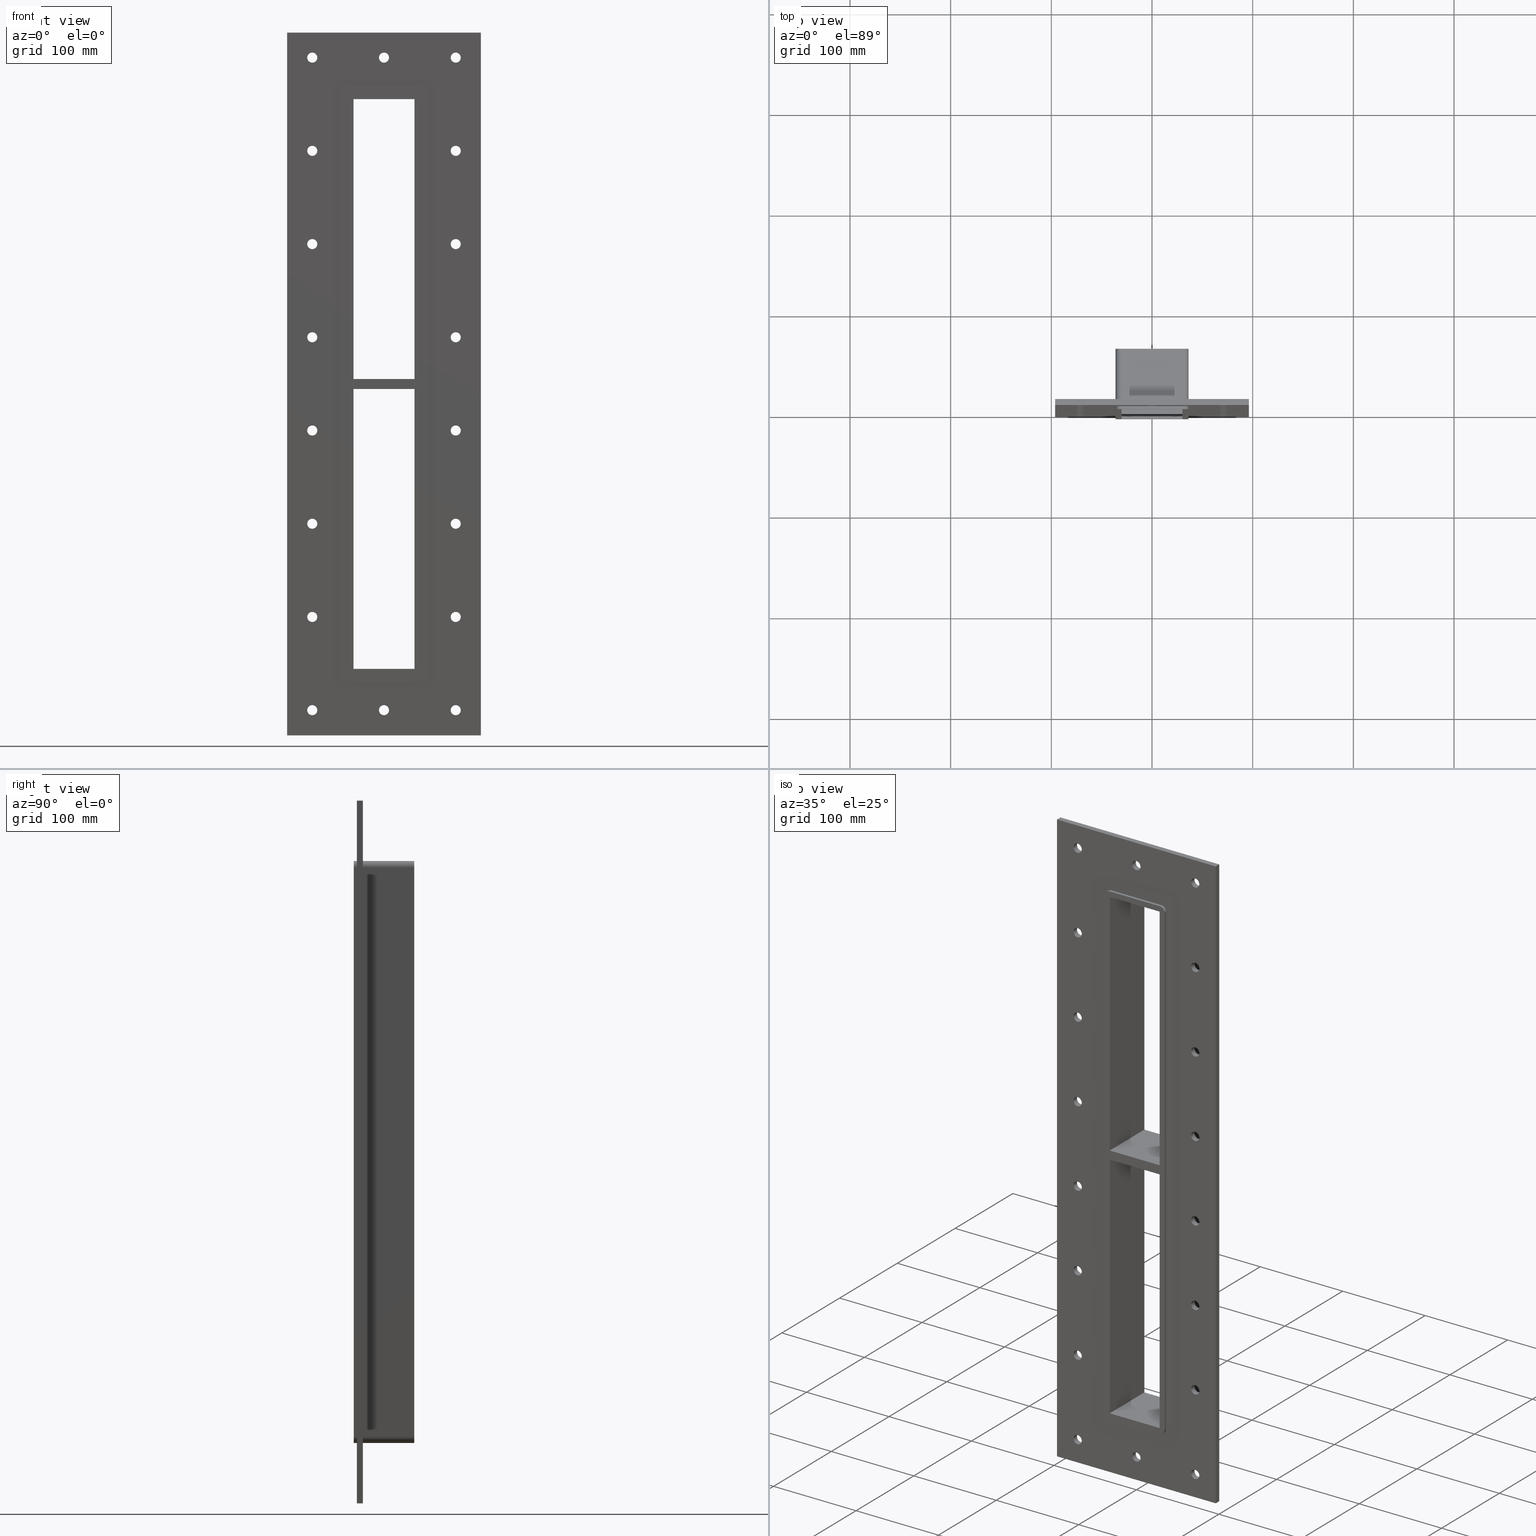
[diagram: canonical four-view strip — front | top / right | iso, engineering-drawing reading convention]
A machine part, canonical four-view strip (front | top / right | iso — engineering-drawing reading convention). The complete STEP part file that produces these views, byte-faithful:
ISO-10303-21;
HEADER;
/****************************************************************
 * Generated by software with PDElib inside                    *
 * PDElib Version v51a, created Wed 11/30/2011                  *
 * ITI Transcendata (http://www.transcendata.com/)              *
 ****************************************************************/
FILE_DESCRIPTION((''),'2;1');
FILE_NAME('L:\\roxtec-se\\Projects\\Ongoing_Projects\\12403 Transit Designer\\Product-data\\Product Data\\Transit designer Cad Generator\\CreatedFiles\\STEP\\GBEX7+7X1.stp','2015-02-18T06:46:35',(''),(''),'Autodesk Inventor 2013','Autodesk Inventor 2013','');
FILE_SCHEMA(('AUTOMOTIVE_DESIGN { 1 0 10303 214 1 1 1 1 }'));
ENDSEC;
DATA;
#5=APPLICATION_CONTEXT('automotive design');
#6=APPLICATION_PROTOCOL_DEFINITION('International Standard','automotive_design',2001,#5);
#7=PRODUCT_CONTEXT('',#5,'mechanical');
#8=PRODUCT('G B Ex','G B Ex',$,(#7));
#9=PRODUCT_RELATED_PRODUCT_CATEGORY('part',$,(#8));
#10=PRODUCT_DEFINITION_FORMATION('',$,#8);
#11=PRODUCT_DEFINITION_CONTEXT('part definition',#5,'design');
#12=PRODUCT_DEFINITION('',$,#10,#11);
#18=(NAMED_UNIT(*)PLANE_ANGLE_UNIT()SI_UNIT($,.RADIAN.));
#19=DIMENSIONAL_EXPONENTS(0.0,0.0,0.0,0.0,0.0,0.0,0.0);
#20=PLANE_ANGLE_MEASURE_WITH_UNIT(PLANE_ANGLE_MEASURE(0.0174532925),#18);
#24=(CONVERSION_BASED_UNIT('DEGREE',#20)NAMED_UNIT(#19)PLANE_ANGLE_UNIT());
#28=(NAMED_UNIT(*)SI_UNIT($,.STERADIAN.)SOLID_ANGLE_UNIT());
#32=(LENGTH_UNIT()NAMED_UNIT(*)SI_UNIT(.MILLI.,.METRE.));
#34=UNCERTAINTY_MEASURE_WITH_UNIT(LENGTH_MEASURE(0.01),#32,'DISTANCE_ACCURACY_VALUE','');
#36=(GEOMETRIC_REPRESENTATION_CONTEXT(3)GLOBAL_UNCERTAINTY_ASSIGNED_CONTEXT((#34))GLOBAL_UNIT_ASSIGNED_CONTEXT((#24,#28,#32))REPRESENTATION_CONTEXT('None','None'));
#37=AXIS2_PLACEMENT_3D('',#38,#39,#40);
#38=CARTESIAN_POINT('',(0.0,0.0,0.0));
#39=DIRECTION('',(0.0,0.0,1.0));
#40=DIRECTION('',(1.0,0.0,0.0));
#41=SHAPE_REPRESENTATION('',(#37),#36);
#42=PRODUCT_DEFINITION_SHAPE('','',#12);
#43=SHAPE_DEFINITION_REPRESENTATION(#42,#41);
#49=(NAMED_UNIT(*)PLANE_ANGLE_UNIT()SI_UNIT($,.RADIAN.));
#50=DIMENSIONAL_EXPONENTS(0.0,0.0,0.0,0.0,0.0,0.0,0.0);
#51=PLANE_ANGLE_MEASURE_WITH_UNIT(PLANE_ANGLE_MEASURE(0.0174532925),#49);
#55=(CONVERSION_BASED_UNIT('DEGREE',#51)NAMED_UNIT(#50)PLANE_ANGLE_UNIT());
#59=(NAMED_UNIT(*)SI_UNIT($,.STERADIAN.)SOLID_ANGLE_UNIT());
#63=(LENGTH_UNIT()NAMED_UNIT(*)SI_UNIT(.MILLI.,.METRE.));
#65=UNCERTAINTY_MEASURE_WITH_UNIT(LENGTH_MEASURE(0.000001),#63,'DISTANCE_ACCURACY_VALUE','');
#67=(GEOMETRIC_REPRESENTATION_CONTEXT(3)GLOBAL_UNCERTAINTY_ASSIGNED_CONTEXT((#65))GLOBAL_UNIT_ASSIGNED_CONTEXT((#55,#59,#63))REPRESENTATION_CONTEXT('','3D'));
#68=CARTESIAN_POINT('',(-71.250000000000085,726.53991631568306,-323.99999999999989));
#69=DIRECTION('',(0.0,-1.0,0.0));
#70=DIRECTION('',(1.0,0.0,0.0));
#71=AXIS2_PLACEMENT_3D('',#68,#69,#70);
#72=CYLINDRICAL_SURFACE('',#71,5.0);
#73=CARTESIAN_POINT('',(-76.250000000000085,5.999999999999943,-323.99999999999989));
#74=VERTEX_POINT('',#73);
#75=CARTESIAN_POINT('',(-71.250000000000085,5.999999999999943,-323.99999999999989));
#76=DIRECTION('',(0.0,-1.0,0.0));
#77=DIRECTION('',(1.0,0.0,0.0));
#78=AXIS2_PLACEMENT_3D('',#75,#76,#77);
#79=CIRCLE('',#78,5.0);
#80=EDGE_CURVE('',#74,#74,#79,.T.);
#81=ORIENTED_EDGE('',*,*,#80,.F.);
#82=EDGE_LOOP('',(#81));
#83=FACE_OUTER_BOUND('',#82,.T.);
#84=CARTESIAN_POINT('',(-66.250000000000085,0.0,-323.99999999999989));
#85=VERTEX_POINT('',#84);
#86=CARTESIAN_POINT('',(-71.250000000000085,0.0,-323.99999999999989));
#87=DIRECTION('',(0.0,1.0,0.0));
#88=DIRECTION('',(1.0,0.0,0.0));
#89=AXIS2_PLACEMENT_3D('',#86,#87,#88);
#90=CIRCLE('',#89,5.0);
#91=EDGE_CURVE('',#85,#85,#90,.T.);
#92=ORIENTED_EDGE('',*,*,#91,.F.);
#93=EDGE_LOOP('',(#92));
#94=FACE_BOUND('',#93,.T.);
#95=ADVANCED_FACE('',(#83,#94),#72,.F.);
#96=CARTESIAN_POINT('',(71.249999999999915,726.53991631568306,-231.40000000000001));
#97=DIRECTION('',(0.0,-1.0,0.0));
#98=DIRECTION('',(1.0,0.0,0.0));
#99=AXIS2_PLACEMENT_3D('',#96,#97,#98);
#100=CYLINDRICAL_SURFACE('',#99,5.0);
#101=CARTESIAN_POINT('',(66.249999999999915,5.999999999999943,-231.40000000000001));
#102=VERTEX_POINT('',#101);
#103=CARTESIAN_POINT('',(71.249999999999915,5.999999999999943,-231.40000000000001));
#104=DIRECTION('',(0.0,-1.0,0.0));
#105=DIRECTION('',(1.0,0.0,0.0));
#106=AXIS2_PLACEMENT_3D('',#103,#104,#105);
#107=CIRCLE('',#106,5.0);
#108=EDGE_CURVE('',#102,#102,#107,.T.);
#109=ORIENTED_EDGE('',*,*,#108,.F.);
#110=EDGE_LOOP('',(#109));
#111=FACE_OUTER_BOUND('',#110,.T.);
#112=CARTESIAN_POINT('',(76.249999999999915,0.0,-231.40000000000001));
#113=VERTEX_POINT('',#112);
#114=CARTESIAN_POINT('',(71.249999999999915,0.0,-231.40000000000001));
#115=DIRECTION('',(0.0,1.0,0.0));
#116=DIRECTION('',(1.0,0.0,0.0));
#117=AXIS2_PLACEMENT_3D('',#114,#115,#116);
#118=CIRCLE('',#117,5.0);
#119=EDGE_CURVE('',#113,#113,#118,.T.);
#120=ORIENTED_EDGE('',*,*,#119,.F.);
#121=EDGE_LOOP('',(#120));
#122=FACE_BOUND('',#121,.T.);
#123=ADVANCED_FACE('',(#111,#122),#100,.F.);
#124=CARTESIAN_POINT('',(-71.250000000000085,726.53991631568306,-231.40000000000001));
#125=DIRECTION('',(0.0,-1.0,0.0));
#126=DIRECTION('',(1.0,0.0,0.0));
#127=AXIS2_PLACEMENT_3D('',#124,#125,#126);
#128=CYLINDRICAL_SURFACE('',#127,5.0);
#129=CARTESIAN_POINT('',(-76.250000000000085,5.999999999999943,-231.40000000000001));
#130=VERTEX_POINT('',#129);
#131=CARTESIAN_POINT('',(-71.250000000000085,5.999999999999943,-231.40000000000001));
#132=DIRECTION('',(0.0,-1.0,0.0));
#133=DIRECTION('',(1.0,0.0,0.0));
#134=AXIS2_PLACEMENT_3D('',#131,#132,#133);
#135=CIRCLE('',#134,5.0);
#136=EDGE_CURVE('',#130,#130,#135,.T.);
#137=ORIENTED_EDGE('',*,*,#136,.F.);
#138=EDGE_LOOP('',(#137));
#139=FACE_OUTER_BOUND('',#138,.T.);
#140=CARTESIAN_POINT('',(-66.250000000000085,0.0,-231.40000000000001));
#141=VERTEX_POINT('',#140);
#142=CARTESIAN_POINT('',(-71.250000000000085,0.0,-231.40000000000001));
#143=DIRECTION('',(0.0,1.0,0.0));
#144=DIRECTION('',(1.0,0.0,0.0));
#145=AXIS2_PLACEMENT_3D('',#142,#143,#144);
#146=CIRCLE('',#145,5.0);
#147=EDGE_CURVE('',#141,#141,#146,.T.);
#148=ORIENTED_EDGE('',*,*,#147,.F.);
#149=EDGE_LOOP('',(#148));
#150=FACE_BOUND('',#149,.T.);
#151=ADVANCED_FACE('',(#139,#150),#128,.F.);
#152=CARTESIAN_POINT('',(71.249999999999915,726.53991631568306,-138.79999999999998));
#153=DIRECTION('',(0.0,-1.0,0.0));
#154=DIRECTION('',(1.0,0.0,0.0));
#155=AXIS2_PLACEMENT_3D('',#152,#153,#154);
#156=CYLINDRICAL_SURFACE('',#155,5.0);
#157=CARTESIAN_POINT('',(66.249999999999915,5.999999999999943,-138.79999999999998));
#158=VERTEX_POINT('',#157);
#159=CARTESIAN_POINT('',(71.249999999999915,5.999999999999943,-138.79999999999998));
#160=DIRECTION('',(0.0,-1.0,0.0));
#161=DIRECTION('',(1.0,0.0,0.0));
#162=AXIS2_PLACEMENT_3D('',#159,#160,#161);
#163=CIRCLE('',#162,5.0);
#164=EDGE_CURVE('',#158,#158,#163,.T.);
#165=ORIENTED_EDGE('',*,*,#164,.F.);
#166=EDGE_LOOP('',(#165));
#167=FACE_OUTER_BOUND('',#166,.T.);
#168=CARTESIAN_POINT('',(76.249999999999915,0.0,-138.79999999999998));
#169=VERTEX_POINT('',#168);
#170=CARTESIAN_POINT('',(71.249999999999915,0.0,-138.79999999999998));
#171=DIRECTION('',(0.0,1.0,0.0));
#172=DIRECTION('',(1.0,0.0,0.0));
#173=AXIS2_PLACEMENT_3D('',#170,#171,#172);
#174=CIRCLE('',#173,5.0);
#175=EDGE_CURVE('',#169,#169,#174,.T.);
#176=ORIENTED_EDGE('',*,*,#175,.F.);
#177=EDGE_LOOP('',(#176));
#178=FACE_BOUND('',#177,.T.);
#179=ADVANCED_FACE('',(#167,#178),#156,.F.);
#180=CARTESIAN_POINT('',(-71.250000000000085,726.53991631568306,-138.79999999999998));
#181=DIRECTION('',(0.0,-1.0,0.0));
#182=DIRECTION('',(1.0,0.0,0.0));
#183=AXIS2_PLACEMENT_3D('',#180,#181,#182);
#184=CYLINDRICAL_SURFACE('',#183,5.0);
#185=CARTESIAN_POINT('',(-76.250000000000085,5.999999999999943,-138.79999999999998));
#186=VERTEX_POINT('',#185);
#187=CARTESIAN_POINT('',(-71.250000000000085,5.999999999999943,-138.79999999999998));
#188=DIRECTION('',(0.0,-1.0,0.0));
#189=DIRECTION('',(1.0,0.0,0.0));
#190=AXIS2_PLACEMENT_3D('',#187,#188,#189);
#191=CIRCLE('',#190,5.0);
#192=EDGE_CURVE('',#186,#186,#191,.T.);
#193=ORIENTED_EDGE('',*,*,#192,.F.);
#194=EDGE_LOOP('',(#193));
#195=FACE_OUTER_BOUND('',#194,.T.);
#196=CARTESIAN_POINT('',(-66.250000000000085,0.0,-138.79999999999998));
#197=VERTEX_POINT('',#196);
#198=CARTESIAN_POINT('',(-71.250000000000085,0.0,-138.79999999999998));
#199=DIRECTION('',(0.0,1.0,0.0));
#200=DIRECTION('',(1.0,0.0,0.0));
#201=AXIS2_PLACEMENT_3D('',#198,#199,#200);
#202=CIRCLE('',#201,5.0);
#203=EDGE_CURVE('',#197,#197,#202,.T.);
#204=ORIENTED_EDGE('',*,*,#203,.F.);
#205=EDGE_LOOP('',(#204));
#206=FACE_BOUND('',#205,.T.);
#207=ADVANCED_FACE('',(#195,#206),#184,.F.);
#208=CARTESIAN_POINT('',(71.249999999999915,726.53991631568306,-46.199999999999989));
#209=DIRECTION('',(0.0,-1.0,0.0));
#210=DIRECTION('',(1.0,0.0,0.0));
#211=AXIS2_PLACEMENT_3D('',#208,#209,#210);
#212=CYLINDRICAL_SURFACE('',#211,5.0);
#213=CARTESIAN_POINT('',(66.249999999999915,5.999999999999943,-46.199999999999989));
#214=VERTEX_POINT('',#213);
#215=CARTESIAN_POINT('',(71.249999999999915,5.999999999999943,-46.199999999999989));
#216=DIRECTION('',(0.0,-1.0,0.0));
#217=DIRECTION('',(1.0,0.0,0.0));
#218=AXIS2_PLACEMENT_3D('',#215,#216,#217);
#219=CIRCLE('',#218,5.0);
#220=EDGE_CURVE('',#214,#214,#219,.T.);
#221=ORIENTED_EDGE('',*,*,#220,.F.);
#222=EDGE_LOOP('',(#221));
#223=FACE_OUTER_BOUND('',#222,.T.);
#224=CARTESIAN_POINT('',(76.249999999999915,0.0,-46.199999999999989));
#225=VERTEX_POINT('',#224);
#226=CARTESIAN_POINT('',(71.249999999999915,0.0,-46.199999999999989));
#227=DIRECTION('',(0.0,1.0,0.0));
#228=DIRECTION('',(1.0,0.0,0.0));
#229=AXIS2_PLACEMENT_3D('',#226,#227,#228);
#230=CIRCLE('',#229,5.0);
#231=EDGE_CURVE('',#225,#225,#230,.T.);
#232=ORIENTED_EDGE('',*,*,#231,.F.);
#233=EDGE_LOOP('',(#232));
#234=FACE_BOUND('',#233,.T.);
#235=ADVANCED_FACE('',(#223,#234),#212,.F.);
#236=CARTESIAN_POINT('',(-71.250000000000085,726.53991631568306,-46.199999999999989));
#237=DIRECTION('',(0.0,-1.0,0.0));
#238=DIRECTION('',(1.0,0.0,0.0));
#239=AXIS2_PLACEMENT_3D('',#236,#237,#238);
#240=CYLINDRICAL_SURFACE('',#239,5.0);
#241=CARTESIAN_POINT('',(-76.250000000000085,5.999999999999943,-46.199999999999989));
#242=VERTEX_POINT('',#241);
#243=CARTESIAN_POINT('',(-71.250000000000085,5.999999999999943,-46.199999999999989));
#244=DIRECTION('',(0.0,-1.0,0.0));
#245=DIRECTION('',(1.0,0.0,0.0));
#246=AXIS2_PLACEMENT_3D('',#243,#244,#245);
#247=CIRCLE('',#246,5.0);
#248=EDGE_CURVE('',#242,#242,#247,.T.);
#249=ORIENTED_EDGE('',*,*,#248,.F.);
#250=EDGE_LOOP('',(#249));
#251=FACE_OUTER_BOUND('',#250,.T.);
#252=CARTESIAN_POINT('',(-66.250000000000085,0.0,-46.199999999999989));
#253=VERTEX_POINT('',#252);
#254=CARTESIAN_POINT('',(-71.250000000000085,0.0,-46.199999999999989));
#255=DIRECTION('',(0.0,1.0,0.0));
#256=DIRECTION('',(1.0,0.0,0.0));
#257=AXIS2_PLACEMENT_3D('',#254,#255,#256);
#258=CIRCLE('',#257,5.0);
#259=EDGE_CURVE('',#253,#253,#258,.T.);
#260=ORIENTED_EDGE('',*,*,#259,.F.);
#261=EDGE_LOOP('',(#260));
#262=FACE_BOUND('',#261,.T.);
#263=ADVANCED_FACE('',(#251,#262),#240,.F.);
#264=CARTESIAN_POINT('',(71.249999999999915,726.53991631568306,46.399999999999991));
#265=DIRECTION('',(0.0,-1.0,0.0));
#266=DIRECTION('',(1.0,0.0,0.0));
#267=AXIS2_PLACEMENT_3D('',#264,#265,#266);
#268=CYLINDRICAL_SURFACE('',#267,5.0);
#269=CARTESIAN_POINT('',(66.249999999999915,5.999999999999943,46.399999999999991));
#270=VERTEX_POINT('',#269);
#271=CARTESIAN_POINT('',(71.249999999999915,5.999999999999943,46.399999999999991));
#272=DIRECTION('',(0.0,-1.0,0.0));
#273=DIRECTION('',(1.0,0.0,0.0));
#274=AXIS2_PLACEMENT_3D('',#271,#272,#273);
#275=CIRCLE('',#274,5.0);
#276=EDGE_CURVE('',#270,#270,#275,.T.);
#277=ORIENTED_EDGE('',*,*,#276,.F.);
#278=EDGE_LOOP('',(#277));
#279=FACE_OUTER_BOUND('',#278,.T.);
#280=CARTESIAN_POINT('',(76.249999999999915,0.0,46.399999999999991));
#281=VERTEX_POINT('',#280);
#282=CARTESIAN_POINT('',(71.249999999999915,0.0,46.399999999999991));
#283=DIRECTION('',(0.0,1.0,0.0));
#284=DIRECTION('',(1.0,0.0,0.0));
#285=AXIS2_PLACEMENT_3D('',#282,#283,#284);
#286=CIRCLE('',#285,5.0);
#287=EDGE_CURVE('',#281,#281,#286,.T.);
#288=ORIENTED_EDGE('',*,*,#287,.F.);
#289=EDGE_LOOP('',(#288));
#290=FACE_BOUND('',#289,.T.);
#291=ADVANCED_FACE('',(#279,#290),#268,.F.);
#292=CARTESIAN_POINT('',(-71.250000000000085,726.53991631568306,46.399999999999991));
#293=DIRECTION('',(0.0,-1.0,0.0));
#294=DIRECTION('',(1.0,0.0,0.0));
#295=AXIS2_PLACEMENT_3D('',#292,#293,#294);
#296=CYLINDRICAL_SURFACE('',#295,5.0);
#297=CARTESIAN_POINT('',(-76.250000000000085,5.999999999999943,46.399999999999991));
#298=VERTEX_POINT('',#297);
#299=CARTESIAN_POINT('',(-71.250000000000085,5.999999999999943,46.399999999999991));
#300=DIRECTION('',(0.0,-1.0,0.0));
#301=DIRECTION('',(1.0,0.0,0.0));
#302=AXIS2_PLACEMENT_3D('',#299,#300,#301);
#303=CIRCLE('',#302,5.0);
#304=EDGE_CURVE('',#298,#298,#303,.T.);
#305=ORIENTED_EDGE('',*,*,#304,.F.);
#306=EDGE_LOOP('',(#305));
#307=FACE_OUTER_BOUND('',#306,.T.);
#308=CARTESIAN_POINT('',(-66.250000000000085,0.0,46.399999999999991));
#309=VERTEX_POINT('',#308);
#310=CARTESIAN_POINT('',(-71.250000000000085,0.0,46.399999999999991));
#311=DIRECTION('',(0.0,1.0,0.0));
#312=DIRECTION('',(1.0,0.0,0.0));
#313=AXIS2_PLACEMENT_3D('',#310,#311,#312);
#314=CIRCLE('',#313,5.0);
#315=EDGE_CURVE('',#309,#309,#314,.T.);
#316=ORIENTED_EDGE('',*,*,#315,.F.);
#317=EDGE_LOOP('',(#316));
#318=FACE_BOUND('',#317,.T.);
#319=ADVANCED_FACE('',(#307,#318),#296,.F.);
#320=CARTESIAN_POINT('',(71.249999999999915,726.53991631568306,139.00000000000003));
#321=DIRECTION('',(0.0,-1.0,0.0));
#322=DIRECTION('',(1.0,0.0,0.0));
#323=AXIS2_PLACEMENT_3D('',#320,#321,#322);
#324=CYLINDRICAL_SURFACE('',#323,5.0);
#325=CARTESIAN_POINT('',(66.249999999999915,5.999999999999943,139.00000000000003));
#326=VERTEX_POINT('',#325);
#327=CARTESIAN_POINT('',(71.249999999999915,5.999999999999943,139.00000000000003));
#328=DIRECTION('',(0.0,-1.0,0.0));
#329=DIRECTION('',(1.0,0.0,0.0));
#330=AXIS2_PLACEMENT_3D('',#327,#328,#329);
#331=CIRCLE('',#330,5.0);
#332=EDGE_CURVE('',#326,#326,#331,.T.);
#333=ORIENTED_EDGE('',*,*,#332,.F.);
#334=EDGE_LOOP('',(#333));
#335=FACE_OUTER_BOUND('',#334,.T.);
#336=CARTESIAN_POINT('',(76.249999999999915,0.0,139.00000000000003));
#337=VERTEX_POINT('',#336);
#338=CARTESIAN_POINT('',(71.249999999999915,0.0,139.00000000000003));
#339=DIRECTION('',(0.0,1.0,0.0));
#340=DIRECTION('',(1.0,0.0,0.0));
#341=AXIS2_PLACEMENT_3D('',#338,#339,#340);
#342=CIRCLE('',#341,5.0);
#343=EDGE_CURVE('',#337,#337,#342,.T.);
#344=ORIENTED_EDGE('',*,*,#343,.F.);
#345=EDGE_LOOP('',(#344));
#346=FACE_BOUND('',#345,.T.);
#347=ADVANCED_FACE('',(#335,#346),#324,.F.);
#348=CARTESIAN_POINT('',(-71.250000000000085,726.53991631568306,139.00000000000003));
#349=DIRECTION('',(0.0,-1.0,0.0));
#350=DIRECTION('',(1.0,0.0,0.0));
#351=AXIS2_PLACEMENT_3D('',#348,#349,#350);
#352=CYLINDRICAL_SURFACE('',#351,5.0);
#353=CARTESIAN_POINT('',(-76.250000000000085,5.999999999999943,139.00000000000003));
#354=VERTEX_POINT('',#353);
#355=CARTESIAN_POINT('',(-71.250000000000085,5.999999999999943,139.00000000000003));
#356=DIRECTION('',(0.0,-1.0,0.0));
#357=DIRECTION('',(1.0,0.0,0.0));
#358=AXIS2_PLACEMENT_3D('',#355,#356,#357);
#359=CIRCLE('',#358,5.0);
#360=EDGE_CURVE('',#354,#354,#359,.T.);
#361=ORIENTED_EDGE('',*,*,#360,.F.);
#362=EDGE_LOOP('',(#361));
#363=FACE_OUTER_BOUND('',#362,.T.);
#364=CARTESIAN_POINT('',(-66.250000000000085,0.0,139.00000000000003));
#365=VERTEX_POINT('',#364);
#366=CARTESIAN_POINT('',(-71.250000000000085,0.0,139.00000000000003));
#367=DIRECTION('',(0.0,1.0,0.0));
#368=DIRECTION('',(1.0,0.0,0.0));
#369=AXIS2_PLACEMENT_3D('',#366,#367,#368);
#370=CIRCLE('',#369,5.0);
#371=EDGE_CURVE('',#365,#365,#370,.T.);
#372=ORIENTED_EDGE('',*,*,#371,.F.);
#373=EDGE_LOOP('',(#372));
#374=FACE_BOUND('',#373,.T.);
#375=ADVANCED_FACE('',(#363,#374),#352,.F.);
#376=CARTESIAN_POINT('',(71.249999999999915,726.53991631568306,231.60000000000002));
#377=DIRECTION('',(0.0,-1.0,0.0));
#378=DIRECTION('',(1.0,0.0,0.0));
#379=AXIS2_PLACEMENT_3D('',#376,#377,#378);
#380=CYLINDRICAL_SURFACE('',#379,5.0);
#381=CARTESIAN_POINT('',(66.249999999999915,5.999999999999943,231.60000000000002));
#382=VERTEX_POINT('',#381);
#383=CARTESIAN_POINT('',(71.249999999999915,5.999999999999943,231.60000000000002));
#384=DIRECTION('',(0.0,-1.0,0.0));
#385=DIRECTION('',(1.0,0.0,0.0));
#386=AXIS2_PLACEMENT_3D('',#383,#384,#385);
#387=CIRCLE('',#386,5.0);
#388=EDGE_CURVE('',#382,#382,#387,.T.);
#389=ORIENTED_EDGE('',*,*,#388,.F.);
#390=EDGE_LOOP('',(#389));
#391=FACE_OUTER_BOUND('',#390,.T.);
#392=CARTESIAN_POINT('',(76.249999999999915,0.0,231.60000000000002));
#393=VERTEX_POINT('',#392);
#394=CARTESIAN_POINT('',(71.249999999999915,0.0,231.60000000000002));
#395=DIRECTION('',(0.0,1.0,0.0));
#396=DIRECTION('',(1.0,0.0,0.0));
#397=AXIS2_PLACEMENT_3D('',#394,#395,#396);
#398=CIRCLE('',#397,5.0);
#399=EDGE_CURVE('',#393,#393,#398,.T.);
#400=ORIENTED_EDGE('',*,*,#399,.F.);
#401=EDGE_LOOP('',(#400));
#402=FACE_BOUND('',#401,.T.);
#403=ADVANCED_FACE('',(#391,#402),#380,.F.);
#404=CARTESIAN_POINT('',(-71.250000000000085,726.53991631568306,231.60000000000002));
#405=DIRECTION('',(0.0,-1.0,0.0));
#406=DIRECTION('',(1.0,0.0,0.0));
#407=AXIS2_PLACEMENT_3D('',#404,#405,#406);
#408=CYLINDRICAL_SURFACE('',#407,5.0);
#409=CARTESIAN_POINT('',(-76.250000000000085,5.999999999999943,231.60000000000002));
#410=VERTEX_POINT('',#409);
#411=CARTESIAN_POINT('',(-71.250000000000085,5.999999999999943,231.60000000000002));
#412=DIRECTION('',(0.0,-1.0,0.0));
#413=DIRECTION('',(1.0,0.0,0.0));
#414=AXIS2_PLACEMENT_3D('',#411,#412,#413);
#415=CIRCLE('',#414,5.0);
#416=EDGE_CURVE('',#410,#410,#415,.T.);
#417=ORIENTED_EDGE('',*,*,#416,.F.);
#418=EDGE_LOOP('',(#417));
#419=FACE_OUTER_BOUND('',#418,.T.);
#420=CARTESIAN_POINT('',(-66.250000000000085,0.0,231.60000000000002));
#421=VERTEX_POINT('',#420);
#422=CARTESIAN_POINT('',(-71.250000000000085,0.0,231.60000000000002));
#423=DIRECTION('',(0.0,1.0,0.0));
#424=DIRECTION('',(1.0,0.0,0.0));
#425=AXIS2_PLACEMENT_3D('',#422,#423,#424);
#426=CIRCLE('',#425,5.0);
#427=EDGE_CURVE('',#421,#421,#426,.T.);
#428=ORIENTED_EDGE('',*,*,#427,.F.);
#429=EDGE_LOOP('',(#428));
#430=FACE_BOUND('',#429,.T.);
#431=ADVANCED_FACE('',(#419,#430),#408,.F.);
#432=CARTESIAN_POINT('',(-7.993606E-014,726.53991631568306,324.20000000000005));
#433=DIRECTION('',(0.0,-1.0,0.0));
#434=DIRECTION('',(1.0,0.0,0.0));
#435=AXIS2_PLACEMENT_3D('',#432,#433,#434);
#436=CYLINDRICAL_SURFACE('',#435,5.0);
#437=CARTESIAN_POINT('',(-5.00000000000008,5.999999999999943,324.20000000000005));
#438=VERTEX_POINT('',#437);
#439=CARTESIAN_POINT('',(-7.993606E-014,5.999999999999943,324.20000000000005));
#440=DIRECTION('',(0.0,-1.0,0.0));
#441=DIRECTION('',(1.0,0.0,0.0));
#442=AXIS2_PLACEMENT_3D('',#439,#440,#441);
#443=CIRCLE('',#442,5.0);
#444=EDGE_CURVE('',#438,#438,#443,.T.);
#445=ORIENTED_EDGE('',*,*,#444,.F.);
#446=EDGE_LOOP('',(#445));
#447=FACE_OUTER_BOUND('',#446,.T.);
#448=CARTESIAN_POINT('',(4.99999999999992,0.0,324.20000000000005));
#449=VERTEX_POINT('',#448);
#450=CARTESIAN_POINT('',(-7.993606E-014,0.0,324.20000000000005));
#451=DIRECTION('',(0.0,1.0,0.0));
#452=DIRECTION('',(1.0,0.0,0.0));
#453=AXIS2_PLACEMENT_3D('',#450,#451,#452);
#454=CIRCLE('',#453,5.0);
#455=EDGE_CURVE('',#449,#449,#454,.T.);
#456=ORIENTED_EDGE('',*,*,#455,.F.);
#457=EDGE_LOOP('',(#456));
#458=FACE_BOUND('',#457,.T.);
#459=ADVANCED_FACE('',(#447,#458),#436,.F.);
#460=CARTESIAN_POINT('',(-7.993606E-014,726.53991631568306,-323.99999999999989));
#461=DIRECTION('',(0.0,-1.0,0.0));
#462=DIRECTION('',(1.0,0.0,0.0));
#463=AXIS2_PLACEMENT_3D('',#460,#461,#462);
#464=CYLINDRICAL_SURFACE('',#463,5.0);
#465=CARTESIAN_POINT('',(-5.00000000000008,5.999999999999943,-323.99999999999989));
#466=VERTEX_POINT('',#465);
#467=CARTESIAN_POINT('',(-7.993606E-014,5.999999999999943,-323.99999999999989));
#468=DIRECTION('',(0.0,-1.0,0.0));
#469=DIRECTION('',(1.0,0.0,0.0));
#470=AXIS2_PLACEMENT_3D('',#467,#468,#469);
#471=CIRCLE('',#470,5.0);
#472=EDGE_CURVE('',#466,#466,#471,.T.);
#473=ORIENTED_EDGE('',*,*,#472,.F.);
#474=EDGE_LOOP('',(#473));
#475=FACE_OUTER_BOUND('',#474,.T.);
#476=CARTESIAN_POINT('',(4.99999999999992,0.0,-323.99999999999989));
#477=VERTEX_POINT('',#476);
#478=CARTESIAN_POINT('',(-7.993606E-014,0.0,-323.99999999999989));
#479=DIRECTION('',(0.0,1.0,0.0));
#480=DIRECTION('',(1.0,0.0,0.0));
#481=AXIS2_PLACEMENT_3D('',#478,#479,#480);
#482=CIRCLE('',#481,5.0);
#483=EDGE_CURVE('',#477,#477,#482,.T.);
#484=ORIENTED_EDGE('',*,*,#483,.F.);
#485=EDGE_LOOP('',(#484));
#486=FACE_BOUND('',#485,.T.);
#487=ADVANCED_FACE('',(#475,#486),#464,.F.);
#488=CARTESIAN_POINT('',(71.249999999999915,726.53991631568306,-323.99999999999989));
#489=DIRECTION('',(0.0,-1.0,0.0));
#490=DIRECTION('',(1.0,0.0,0.0));
#491=AXIS2_PLACEMENT_3D('',#488,#489,#490);
#492=CYLINDRICAL_SURFACE('',#491,5.0);
#493=CARTESIAN_POINT('',(66.249999999999915,5.999999999999943,-323.99999999999989));
#494=VERTEX_POINT('',#493);
#495=CARTESIAN_POINT('',(71.249999999999915,5.999999999999943,-323.99999999999989));
#496=DIRECTION('',(0.0,-1.0,0.0));
#497=DIRECTION('',(1.0,0.0,0.0));
#498=AXIS2_PLACEMENT_3D('',#495,#496,#497);
#499=CIRCLE('',#498,5.0);
#500=EDGE_CURVE('',#494,#494,#499,.T.);
#501=ORIENTED_EDGE('',*,*,#500,.F.);
#502=EDGE_LOOP('',(#501));
#503=FACE_OUTER_BOUND('',#502,.T.);
#504=CARTESIAN_POINT('',(76.249999999999915,0.0,-323.99999999999989));
#505=VERTEX_POINT('',#504);
#506=CARTESIAN_POINT('',(71.249999999999915,0.0,-323.99999999999989));
#507=DIRECTION('',(0.0,1.0,0.0));
#508=DIRECTION('',(1.0,0.0,0.0));
#509=AXIS2_PLACEMENT_3D('',#506,#507,#508);
#510=CIRCLE('',#509,5.0);
#511=EDGE_CURVE('',#505,#505,#510,.T.);
#512=ORIENTED_EDGE('',*,*,#511,.F.);
#513=EDGE_LOOP('',(#512));
#514=FACE_BOUND('',#513,.T.);
#515=ADVANCED_FACE('',(#503,#514),#492,.F.);
#516=CARTESIAN_POINT('',(-71.250000000000085,726.53991631568306,324.20000000000005));
#517=DIRECTION('',(0.0,-1.0,0.0));
#518=DIRECTION('',(1.0,0.0,0.0));
#519=AXIS2_PLACEMENT_3D('',#516,#517,#518);
#520=CYLINDRICAL_SURFACE('',#519,5.0);
#521=CARTESIAN_POINT('',(-76.250000000000085,5.999999999999943,324.20000000000005));
#522=VERTEX_POINT('',#521);
#523=CARTESIAN_POINT('',(-71.250000000000085,5.999999999999943,324.20000000000005));
#524=DIRECTION('',(0.0,-1.0,0.0));
#525=DIRECTION('',(1.0,0.0,0.0));
#526=AXIS2_PLACEMENT_3D('',#523,#524,#525);
#527=CIRCLE('',#526,5.0);
#528=EDGE_CURVE('',#522,#522,#527,.T.);
#529=ORIENTED_EDGE('',*,*,#528,.F.);
#530=EDGE_LOOP('',(#529));
#531=FACE_OUTER_BOUND('',#530,.T.);
#532=CARTESIAN_POINT('',(-66.250000000000085,0.0,324.20000000000005));
#533=VERTEX_POINT('',#532);
#534=CARTESIAN_POINT('',(-71.250000000000085,0.0,324.20000000000005));
#535=DIRECTION('',(0.0,1.0,0.0));
#536=DIRECTION('',(1.0,0.0,0.0));
#537=AXIS2_PLACEMENT_3D('',#534,#535,#536);
#538=CIRCLE('',#537,5.0);
#539=EDGE_CURVE('',#533,#533,#538,.T.);
#540=ORIENTED_EDGE('',*,*,#539,.F.);
#541=EDGE_LOOP('',(#540));
#542=FACE_BOUND('',#541,.T.);
#543=ADVANCED_FACE('',(#531,#542),#520,.F.);
#544=CARTESIAN_POINT('',(71.249999999999915,726.53991631568306,324.20000000000005));
#545=DIRECTION('',(0.0,-1.0,0.0));
#546=DIRECTION('',(1.0,0.0,0.0));
#547=AXIS2_PLACEMENT_3D('',#544,#545,#546);
#548=CYLINDRICAL_SURFACE('',#547,5.0);
#549=CARTESIAN_POINT('',(66.249999999999915,5.999999999999943,324.20000000000005));
#550=VERTEX_POINT('',#549);
#551=CARTESIAN_POINT('',(71.249999999999915,5.999999999999943,324.20000000000005));
#552=DIRECTION('',(0.0,-1.0,0.0));
#553=DIRECTION('',(1.0,0.0,0.0));
#554=AXIS2_PLACEMENT_3D('',#551,#552,#553);
#555=CIRCLE('',#554,5.0);
#556=EDGE_CURVE('',#550,#550,#555,.T.);
#557=ORIENTED_EDGE('',*,*,#556,.F.);
#558=EDGE_LOOP('',(#557));
#559=FACE_OUTER_BOUND('',#558,.T.);
#560=CARTESIAN_POINT('',(76.249999999999915,0.0,324.20000000000005));
#561=VERTEX_POINT('',#560);
#562=CARTESIAN_POINT('',(71.249999999999915,0.0,324.20000000000005));
#563=DIRECTION('',(0.0,1.0,0.0));
#564=DIRECTION('',(1.0,0.0,0.0));
#565=AXIS2_PLACEMENT_3D('',#562,#563,#564);
#566=CIRCLE('',#565,5.0);
#567=EDGE_CURVE('',#561,#561,#566,.T.);
#568=ORIENTED_EDGE('',*,*,#567,.F.);
#569=EDGE_LOOP('',(#568));
#570=FACE_BOUND('',#569,.T.);
#571=ADVANCED_FACE('',(#559,#570),#548,.F.);
#572=CARTESIAN_POINT('',(30.249999999999897,-3.0,-5.000000000011085));
#573=DIRECTION('',(0.0,0.0,-1.0));
#574=DIRECTION('',(-1.0,0.0,0.0));
#575=AXIS2_PLACEMENT_3D('',#572,#573,#574);
#576=PLANE('',#575);
#577=CARTESIAN_POINT('',(30.249999999999897,-3.0,-5.000000000011085));
#578=VERTEX_POINT('',#577);
#579=CARTESIAN_POINT('',(-30.249999999999684,-3.0,-5.000000000011085));
#580=VERTEX_POINT('',#579);
#581=CARTESIAN_POINT('',(30.249999999999897,-3.0,-5.000000000011085));
#582=DIRECTION('',(-1.0,0.0,0.0));
#583=VECTOR('',#582,60.499999999999581);
#584=LINE('',#581,#583);
#585=EDGE_CURVE('',#578,#580,#584,.T.);
#586=ORIENTED_EDGE('',*,*,#585,.T.);
#587=CARTESIAN_POINT('',(-30.249999999999684,57.0,-5.000000000011085));
#588=VERTEX_POINT('',#587);
#589=CARTESIAN_POINT('',(-30.250000000000004,57.000000000000007,-5.000000000011085));
#590=DIRECTION('',(0.0,-1.0,0.0));
#591=VECTOR('',#590,60.000000000000007);
#592=LINE('',#589,#591);
#593=EDGE_CURVE('',#588,#580,#592,.T.);
#594=ORIENTED_EDGE('',*,*,#593,.F.);
#595=CARTESIAN_POINT('',(30.249999999999893,57.0,-5.000000000011085));
#596=VERTEX_POINT('',#595);
#597=CARTESIAN_POINT('',(30.249999999999897,57.0,-5.000000000011085));
#598=DIRECTION('',(-1.0,0.0,0.0));
#599=VECTOR('',#598,60.499999999999581);
#600=LINE('',#597,#599);
#601=EDGE_CURVE('',#596,#588,#600,.T.);
#602=ORIENTED_EDGE('',*,*,#601,.F.);
#603=CARTESIAN_POINT('',(30.250000000000004,-3.0,-5.000000000011085));
#604=DIRECTION('',(0.0,1.0,0.0));
#605=VECTOR('',#604,60.000000000000007);
#606=LINE('',#603,#605);
#607=EDGE_CURVE('',#578,#596,#606,.T.);
#608=ORIENTED_EDGE('',*,*,#607,.F.);
#609=EDGE_LOOP('',(#586,#594,#602,#608));
#610=FACE_OUTER_BOUND('',#609,.T.);
#611=ADVANCED_FACE('',(#610),#576,.T.);
#612=CARTESIAN_POINT('',(-30.249999999999687,-3.0,5.0));
#613=DIRECTION('',(0.0,0.0,1.0));
#614=DIRECTION('',(1.0,0.0,0.0));
#615=AXIS2_PLACEMENT_3D('',#612,#613,#614);
#616=PLANE('',#615);
#617=CARTESIAN_POINT('',(-30.249999999999687,-3.0,5.0));
#618=VERTEX_POINT('',#617);
#619=CARTESIAN_POINT('',(30.249999999999897,-3.0,5.0));
#620=VERTEX_POINT('',#619);
#621=CARTESIAN_POINT('',(-30.249999999999687,-3.0,5.0));
#622=DIRECTION('',(1.0,0.0,0.0));
#623=VECTOR('',#622,60.499999999999581);
#624=LINE('',#621,#623);
#625=EDGE_CURVE('',#618,#620,#624,.T.);
#626=ORIENTED_EDGE('',*,*,#625,.T.);
#627=CARTESIAN_POINT('',(30.249999999999893,57.0,5.0));
#628=VERTEX_POINT('',#627);
#629=CARTESIAN_POINT('',(30.250000000000004,57.000000000000007,5.0));
#630=DIRECTION('',(0.0,-1.0,0.0));
#631=VECTOR('',#630,60.000000000000007);
#632=LINE('',#629,#631);
#633=EDGE_CURVE('',#628,#620,#632,.T.);
#634=ORIENTED_EDGE('',*,*,#633,.F.);
#635=CARTESIAN_POINT('',(-30.249999999999687,57.0,5.0));
#636=VERTEX_POINT('',#635);
#637=CARTESIAN_POINT('',(-30.249999999999687,57.0,5.0));
#638=DIRECTION('',(1.0,0.0,0.0));
#639=VECTOR('',#638,60.499999999999581);
#640=LINE('',#637,#639);
#641=EDGE_CURVE('',#636,#628,#640,.T.);
#642=ORIENTED_EDGE('',*,*,#641,.F.);
#643=CARTESIAN_POINT('',(-30.250000000000004,-3.0,5.0));
#644=DIRECTION('',(0.0,1.0,0.0));
#645=VECTOR('',#644,60.000000000000007);
#646=LINE('',#643,#645);
#647=EDGE_CURVE('',#618,#636,#646,.T.);
#648=ORIENTED_EDGE('',*,*,#647,.F.);
#649=EDGE_LOOP('',(#626,#634,#642,#648));
#650=FACE_OUTER_BOUND('',#649,.T.);
#651=ADVANCED_FACE('',(#650),#616,.T.);
#652=CARTESIAN_POINT('',(-30.250000000000004,0.0,-283.00000000000006));
#653=DIRECTION('',(-1.0,0.0,0.0));
#654=DIRECTION('',(0.0,0.0,1.0));
#655=AXIS2_PLACEMENT_3D('',#652,#653,#654);
#656=PLANE('',#655);
#657=ORIENTED_EDGE('',*,*,#647,.T.);
#658=CARTESIAN_POINT('',(-30.250000000000004,57.0,283.00000000000006));
#659=VERTEX_POINT('',#658);
#660=CARTESIAN_POINT('',(-30.250000000000004,57.0,283.0));
#661=DIRECTION('',(0.0,0.0,-1.0));
#662=VECTOR('',#661,278.0);
#663=LINE('',#660,#662);
#664=EDGE_CURVE('',#659,#636,#663,.T.);
#665=ORIENTED_EDGE('',*,*,#664,.F.);
#666=CARTESIAN_POINT('',(-30.250000000000004,-3.0,283.00000000000006));
#667=VERTEX_POINT('',#666);
#668=CARTESIAN_POINT('',(-30.250000000000004,-3.0,283.0));
#669=DIRECTION('',(0.0,1.0,0.0));
#670=VECTOR('',#669,60.0);
#671=LINE('',#668,#670);
#672=EDGE_CURVE('',#667,#659,#671,.T.);
#673=ORIENTED_EDGE('',*,*,#672,.F.);
#674=CARTESIAN_POINT('',(-30.250000000000004,-3.0,5.0));
#675=DIRECTION('',(0.0,0.0,1.0));
#676=VECTOR('',#675,278.0);
#677=LINE('',#674,#676);
#678=EDGE_CURVE('',#618,#667,#677,.T.);
#679=ORIENTED_EDGE('',*,*,#678,.F.);
#680=EDGE_LOOP('',(#657,#665,#673,#679));
#681=FACE_OUTER_BOUND('',#680,.T.);
#682=ADVANCED_FACE('',(#681),#656,.F.);
#683=CARTESIAN_POINT('',(30.250000000000004,0.0,283.0));
#684=DIRECTION('',(1.0,0.0,0.0));
#685=DIRECTION('',(0.0,0.0,-1.0));
#686=AXIS2_PLACEMENT_3D('',#683,#684,#685);
#687=PLANE('',#686);
#688=ORIENTED_EDGE('',*,*,#607,.T.);
#689=CARTESIAN_POINT('',(30.250000000000004,57.0,-283.00000000000006));
#690=VERTEX_POINT('',#689);
#691=CARTESIAN_POINT('',(30.250000000000004,57.0,-283.0));
#692=DIRECTION('',(0.0,0.0,1.0));
#693=VECTOR('',#692,277.99999999998892);
#694=LINE('',#691,#693);
#695=EDGE_CURVE('',#690,#596,#694,.T.);
#696=ORIENTED_EDGE('',*,*,#695,.F.);
#697=CARTESIAN_POINT('',(30.250000000000004,-3.0,-283.00000000000006));
#698=VERTEX_POINT('',#697);
#699=CARTESIAN_POINT('',(30.250000000000004,56.999999999999993,-283.00000000000006));
#700=DIRECTION('',(0.0,-1.0,0.0));
#701=VECTOR('',#700,59.999999999999993);
#702=LINE('',#699,#701);
#703=EDGE_CURVE('',#690,#698,#702,.T.);
#704=ORIENTED_EDGE('',*,*,#703,.T.);
#705=CARTESIAN_POINT('',(30.250000000000004,-3.0,-5.000000000011085));
#706=DIRECTION('',(0.0,0.0,-1.0));
#707=VECTOR('',#706,277.99999999998892);
#708=LINE('',#705,#707);
#709=EDGE_CURVE('',#578,#698,#708,.T.);
#710=ORIENTED_EDGE('',*,*,#709,.F.);
#711=EDGE_LOOP('',(#688,#696,#704,#710));
#712=FACE_OUTER_BOUND('',#711,.T.);
#713=ADVANCED_FACE('',(#712),#687,.F.);
#714=CARTESIAN_POINT('',(30.250000000000004,0.0,283.0));
#715=DIRECTION('',(1.0,0.0,0.0));
#716=DIRECTION('',(0.0,0.0,-1.0));
#717=AXIS2_PLACEMENT_3D('',#714,#715,#716);
#718=PLANE('',#717);
#719=ORIENTED_EDGE('',*,*,#633,.T.);
#720=CARTESIAN_POINT('',(30.250000000000004,-3.0,283.00000000000006));
#721=VERTEX_POINT('',#720);
#722=CARTESIAN_POINT('',(30.250000000000004,-3.0,283.0));
#723=DIRECTION('',(0.0,0.0,-1.0));
#724=VECTOR('',#723,278.0);
#725=LINE('',#722,#724);
#726=EDGE_CURVE('',#721,#620,#725,.T.);
#727=ORIENTED_EDGE('',*,*,#726,.F.);
#728=CARTESIAN_POINT('',(30.250000000000004,57.0,283.00000000000006));
#729=VERTEX_POINT('',#728);
#730=CARTESIAN_POINT('',(30.250000000000004,-3.0,283.0));
#731=DIRECTION('',(0.0,1.0,0.0));
#732=VECTOR('',#731,60.0);
#733=LINE('',#730,#732);
#734=EDGE_CURVE('',#721,#729,#733,.T.);
#735=ORIENTED_EDGE('',*,*,#734,.T.);
#736=CARTESIAN_POINT('',(30.250000000000004,57.0,5.0));
#737=DIRECTION('',(0.0,0.0,1.0));
#738=VECTOR('',#737,278.0);
#739=LINE('',#736,#738);
#740=EDGE_CURVE('',#628,#729,#739,.T.);
#741=ORIENTED_EDGE('',*,*,#740,.F.);
#742=EDGE_LOOP('',(#719,#727,#735,#741));
#743=FACE_OUTER_BOUND('',#742,.T.);
#744=ADVANCED_FACE('',(#743),#718,.F.);
#745=CARTESIAN_POINT('',(0.0,6.000000000000001,3.351240E-014));
#746=DIRECTION('',(0.0,1.0,0.0));
#747=DIRECTION('',(0.0,0.0,1.0));
#748=AXIS2_PLACEMENT_3D('',#745,#746,#747);
#749=PLANE('',#748);
#750=CARTESIAN_POINT('',(-96.25,6.000000000000001,349.0));
#751=VERTEX_POINT('',#750);
#752=CARTESIAN_POINT('',(96.25,6.000000000000001,349.0));
#753=VERTEX_POINT('',#752);
#754=CARTESIAN_POINT('',(-96.25,6.000000000000001,349.0));
#755=DIRECTION('',(1.0,0.0,0.0));
#756=VECTOR('',#755,192.5);
#757=LINE('',#754,#756);
#758=EDGE_CURVE('',#751,#753,#757,.T.);
#759=ORIENTED_EDGE('',*,*,#758,.T.);
#760=CARTESIAN_POINT('',(96.25,6.000000000000001,-348.99999999999983));
#761=VERTEX_POINT('',#760);
#762=CARTESIAN_POINT('',(96.25,6.000000000000001,349.0));
#763=DIRECTION('',(0.0,0.0,-1.0));
#764=VECTOR('',#763,697.99999999999977);
#765=LINE('',#762,#764);
#766=EDGE_CURVE('',#753,#761,#765,.T.);
#767=ORIENTED_EDGE('',*,*,#766,.T.);
#768=CARTESIAN_POINT('',(-96.25,6.000000000000001,-348.99999999999983));
#769=VERTEX_POINT('',#768);
#770=CARTESIAN_POINT('',(96.25,6.000000000000001,-348.99999999999989));
#771=DIRECTION('',(-1.0,0.0,0.0));
#772=VECTOR('',#771,192.5);
#773=LINE('',#770,#772);
#774=EDGE_CURVE('',#761,#769,#773,.T.);
#775=ORIENTED_EDGE('',*,*,#774,.T.);
#776=CARTESIAN_POINT('',(-96.25,6.000000000000001,-348.99999999999989));
#777=DIRECTION('',(0.0,0.0,1.0));
#778=VECTOR('',#777,697.99999999999977);
#779=LINE('',#776,#778);
#780=EDGE_CURVE('',#769,#751,#779,.T.);
#781=ORIENTED_EDGE('',*,*,#780,.T.);
#782=EDGE_LOOP('',(#759,#767,#775,#781));
#783=FACE_OUTER_BOUND('',#782,.T.);
#784=ORIENTED_EDGE('',*,*,#80,.T.);
#785=EDGE_LOOP('',(#784));
#786=FACE_BOUND('',#785,.T.);
#787=ORIENTED_EDGE('',*,*,#108,.T.);
#788=EDGE_LOOP('',(#787));
#789=FACE_BOUND('',#788,.T.);
#790=ORIENTED_EDGE('',*,*,#136,.T.);
#791=EDGE_LOOP('',(#790));
#792=FACE_BOUND('',#791,.T.);
#793=ORIENTED_EDGE('',*,*,#164,.T.);
#794=EDGE_LOOP('',(#793));
#795=FACE_BOUND('',#794,.T.);
#796=ORIENTED_EDGE('',*,*,#192,.T.);
#797=EDGE_LOOP('',(#796));
#798=FACE_BOUND('',#797,.T.);
#799=ORIENTED_EDGE('',*,*,#220,.T.);
#800=EDGE_LOOP('',(#799));
#801=FACE_BOUND('',#800,.T.);
#802=ORIENTED_EDGE('',*,*,#248,.T.);
#803=EDGE_LOOP('',(#802));
#804=FACE_BOUND('',#803,.T.);
#805=ORIENTED_EDGE('',*,*,#276,.T.);
#806=EDGE_LOOP('',(#805));
#807=FACE_BOUND('',#806,.T.);
#808=ORIENTED_EDGE('',*,*,#304,.T.);
#809=EDGE_LOOP('',(#808));
#810=FACE_BOUND('',#809,.T.);
#811=ORIENTED_EDGE('',*,*,#332,.T.);
#812=EDGE_LOOP('',(#811));
#813=FACE_BOUND('',#812,.T.);
#814=ORIENTED_EDGE('',*,*,#360,.T.);
#815=EDGE_LOOP('',(#814));
#816=FACE_BOUND('',#815,.T.);
#817=ORIENTED_EDGE('',*,*,#388,.T.);
#818=EDGE_LOOP('',(#817));
#819=FACE_BOUND('',#818,.T.);
#820=ORIENTED_EDGE('',*,*,#416,.T.);
#821=EDGE_LOOP('',(#820));
#822=FACE_BOUND('',#821,.T.);
#823=ORIENTED_EDGE('',*,*,#444,.T.);
#824=EDGE_LOOP('',(#823));
#825=FACE_BOUND('',#824,.T.);
#826=ORIENTED_EDGE('',*,*,#472,.T.);
#827=EDGE_LOOP('',(#826));
#828=FACE_BOUND('',#827,.T.);
#829=ORIENTED_EDGE('',*,*,#500,.T.);
#830=EDGE_LOOP('',(#829));
#831=FACE_BOUND('',#830,.T.);
#832=ORIENTED_EDGE('',*,*,#528,.T.);
#833=EDGE_LOOP('',(#832));
#834=FACE_BOUND('',#833,.T.);
#835=ORIENTED_EDGE('',*,*,#556,.T.);
#836=EDGE_LOOP('',(#835));
#837=FACE_BOUND('',#836,.T.);
#838=CARTESIAN_POINT('',(-30.250000000000004,6.000000000000001,-289.0));
#839=VERTEX_POINT('',#838);
#840=CARTESIAN_POINT('',(-36.250000000000007,6.000000000000001,-283.0));
#841=VERTEX_POINT('',#840);
#842=CARTESIAN_POINT('',(-30.250000000000004,6.000000000000001,-283.0));
#843=DIRECTION('',(0.0,1.0,0.0));
#844=DIRECTION('',(-0.707106781186546,0.0,-0.707106781186549));
#845=AXIS2_PLACEMENT_3D('',#842,#843,#844);
#846=CIRCLE('',#845,6.000000000000001);
#847=EDGE_CURVE('',#839,#841,#846,.T.);
#848=ORIENTED_EDGE('',*,*,#847,.F.);
#849=CARTESIAN_POINT('',(30.250000000000004,6.000000000000001,-289.0));
#850=VERTEX_POINT('',#849);
#851=CARTESIAN_POINT('',(30.250000000000007,6.000000000000001,-289.0));
#852=DIRECTION('',(-1.0,0.0,0.0));
#853=VECTOR('',#852,60.5);
#854=LINE('',#851,#853);
#855=EDGE_CURVE('',#850,#839,#854,.T.);
#856=ORIENTED_EDGE('',*,*,#855,.F.);
#857=CARTESIAN_POINT('',(36.250000000000007,6.000000000000001,-283.0));
#858=VERTEX_POINT('',#857);
#859=CARTESIAN_POINT('',(30.250000000000004,6.000000000000001,-283.0));
#860=DIRECTION('',(0.0,1.0,0.0));
#861=DIRECTION('',(0.707106781186546,0.0,-0.707106781186549));
#862=AXIS2_PLACEMENT_3D('',#859,#860,#861);
#863=CIRCLE('',#862,6.000000000000001);
#864=EDGE_CURVE('',#858,#850,#863,.T.);
#865=ORIENTED_EDGE('',*,*,#864,.F.);
#866=CARTESIAN_POINT('',(36.250000000000007,6.000000000000001,283.0));
#867=VERTEX_POINT('',#866);
#868=CARTESIAN_POINT('',(36.250000000000007,6.000000000000001,283.0));
#869=DIRECTION('',(0.0,0.0,-1.0));
#870=VECTOR('',#869,566.0);
#871=LINE('',#868,#870);
#872=EDGE_CURVE('',#867,#858,#871,.T.);
#873=ORIENTED_EDGE('',*,*,#872,.F.);
#874=CARTESIAN_POINT('',(30.250000000000004,6.000000000000001,289.0));
#875=VERTEX_POINT('',#874);
#876=CARTESIAN_POINT('',(30.250000000000004,6.000000000000001,283.0));
#877=DIRECTION('',(0.0,1.0,0.0));
#878=DIRECTION('',(0.707106781186546,0.0,0.707106781186549));
#879=AXIS2_PLACEMENT_3D('',#876,#877,#878);
#880=CIRCLE('',#879,6.000000000000001);
#881=EDGE_CURVE('',#875,#867,#880,.T.);
#882=ORIENTED_EDGE('',*,*,#881,.F.);
#883=CARTESIAN_POINT('',(-30.250000000000004,6.000000000000001,289.0));
#884=VERTEX_POINT('',#883);
#885=CARTESIAN_POINT('',(-30.250000000000007,6.000000000000001,289.0));
#886=DIRECTION('',(1.0,0.0,0.0));
#887=VECTOR('',#886,60.5);
#888=LINE('',#885,#887);
#889=EDGE_CURVE('',#884,#875,#888,.T.);
#890=ORIENTED_EDGE('',*,*,#889,.F.);
#891=CARTESIAN_POINT('',(-36.250000000000007,6.000000000000001,283.0));
#892=VERTEX_POINT('',#891);
#893=CARTESIAN_POINT('',(-30.250000000000004,6.000000000000001,283.0));
#894=DIRECTION('',(0.0,1.0,0.0));
#895=DIRECTION('',(-0.707106781186546,0.0,0.707106781186549));
#896=AXIS2_PLACEMENT_3D('',#893,#894,#895);
#897=CIRCLE('',#896,6.000000000000001);
#898=EDGE_CURVE('',#892,#884,#897,.T.);
#899=ORIENTED_EDGE('',*,*,#898,.F.);
#900=CARTESIAN_POINT('',(-36.250000000000007,6.000000000000001,-283.0));
#901=DIRECTION('',(0.0,0.0,1.0));
#902=VECTOR('',#901,566.0);
#903=LINE('',#900,#902);
#904=EDGE_CURVE('',#841,#892,#903,.T.);
#905=ORIENTED_EDGE('',*,*,#904,.F.);
#906=EDGE_LOOP('',(#848,#856,#865,#873,#882,#890,#899,#905));
#907=FACE_BOUND('',#906,.T.);
#908=ADVANCED_FACE('',(#783,#786,#789,#792,#795,#798,#801,#804,#807,#810,#813,#816,#819,#822,#825,#828,#831,#834,#837,#907),#749,.T.);
#909=CARTESIAN_POINT('',(0.0,0.0,3.351240E-014));
#910=DIRECTION('',(0.0,1.0,0.0));
#911=DIRECTION('',(0.0,0.0,1.0));
#912=AXIS2_PLACEMENT_3D('',#909,#910,#911);
#913=PLANE('',#912);
#914=CARTESIAN_POINT('',(-96.25,0.0,349.0));
#915=VERTEX_POINT('',#914);
#916=CARTESIAN_POINT('',(96.25,0.0,349.0));
#917=VERTEX_POINT('',#916);
#918=CARTESIAN_POINT('',(-96.25,0.0,349.0));
#919=DIRECTION('',(1.0,0.0,0.0));
#920=VECTOR('',#919,192.5);
#921=LINE('',#918,#920);
#922=EDGE_CURVE('',#915,#917,#921,.T.);
#923=ORIENTED_EDGE('',*,*,#922,.F.);
#924=CARTESIAN_POINT('',(-96.25,0.0,-348.99999999999989));
#925=VERTEX_POINT('',#924);
#926=CARTESIAN_POINT('',(-96.25,0.0,-348.99999999999989));
#927=DIRECTION('',(0.0,0.0,1.0));
#928=VECTOR('',#927,697.99999999999977);
#929=LINE('',#926,#928);
#930=EDGE_CURVE('',#925,#915,#929,.T.);
#931=ORIENTED_EDGE('',*,*,#930,.F.);
#932=CARTESIAN_POINT('',(96.25,0.0,-348.99999999999989));
#933=VERTEX_POINT('',#932);
#934=CARTESIAN_POINT('',(96.25,0.0,-348.99999999999989));
#935=DIRECTION('',(-1.0,0.0,0.0));
#936=VECTOR('',#935,192.5);
#937=LINE('',#934,#936);
#938=EDGE_CURVE('',#933,#925,#937,.T.);
#939=ORIENTED_EDGE('',*,*,#938,.F.);
#940=CARTESIAN_POINT('',(96.25,0.0,349.0));
#941=DIRECTION('',(0.0,0.0,-1.0));
#942=VECTOR('',#941,697.99999999999977);
#943=LINE('',#940,#942);
#944=EDGE_CURVE('',#917,#933,#943,.T.);
#945=ORIENTED_EDGE('',*,*,#944,.F.);
#946=EDGE_LOOP('',(#923,#931,#939,#945));
#947=FACE_OUTER_BOUND('',#946,.T.);
#948=ORIENTED_EDGE('',*,*,#91,.T.);
#949=EDGE_LOOP('',(#948));
#950=FACE_BOUND('',#949,.T.);
#951=ORIENTED_EDGE('',*,*,#119,.T.);
#952=EDGE_LOOP('',(#951));
#953=FACE_BOUND('',#952,.T.);
#954=ORIENTED_EDGE('',*,*,#147,.T.);
#955=EDGE_LOOP('',(#954));
#956=FACE_BOUND('',#955,.T.);
#957=ORIENTED_EDGE('',*,*,#175,.T.);
#958=EDGE_LOOP('',(#957));
#959=FACE_BOUND('',#958,.T.);
#960=ORIENTED_EDGE('',*,*,#203,.T.);
#961=EDGE_LOOP('',(#960));
#962=FACE_BOUND('',#961,.T.);
#963=ORIENTED_EDGE('',*,*,#231,.T.);
#964=EDGE_LOOP('',(#963));
#965=FACE_BOUND('',#964,.T.);
#966=ORIENTED_EDGE('',*,*,#259,.T.);
#967=EDGE_LOOP('',(#966));
#968=FACE_BOUND('',#967,.T.);
#969=ORIENTED_EDGE('',*,*,#287,.T.);
#970=EDGE_LOOP('',(#969));
#971=FACE_BOUND('',#970,.T.);
#972=ORIENTED_EDGE('',*,*,#315,.T.);
#973=EDGE_LOOP('',(#972));
#974=FACE_BOUND('',#973,.T.);
#975=ORIENTED_EDGE('',*,*,#343,.T.);
#976=EDGE_LOOP('',(#975));
#977=FACE_BOUND('',#976,.T.);
#978=ORIENTED_EDGE('',*,*,#371,.T.);
#979=EDGE_LOOP('',(#978));
#980=FACE_BOUND('',#979,.T.);
#981=ORIENTED_EDGE('',*,*,#399,.T.);
#982=EDGE_LOOP('',(#981));
#983=FACE_BOUND('',#982,.T.);
#984=ORIENTED_EDGE('',*,*,#427,.T.);
#985=EDGE_LOOP('',(#984));
#986=FACE_BOUND('',#985,.T.);
#987=ORIENTED_EDGE('',*,*,#455,.T.);
#988=EDGE_LOOP('',(#987));
#989=FACE_BOUND('',#988,.T.);
#990=ORIENTED_EDGE('',*,*,#483,.T.);
#991=EDGE_LOOP('',(#990));
#992=FACE_BOUND('',#991,.T.);
#993=ORIENTED_EDGE('',*,*,#511,.T.);
#994=EDGE_LOOP('',(#993));
#995=FACE_BOUND('',#994,.T.);
#996=ORIENTED_EDGE('',*,*,#539,.T.);
#997=EDGE_LOOP('',(#996));
#998=FACE_BOUND('',#997,.T.);
#999=ORIENTED_EDGE('',*,*,#567,.T.);
#1000=EDGE_LOOP('',(#999));
#1001=FACE_BOUND('',#1000,.T.);
#1002=CARTESIAN_POINT('',(-36.250000000000007,0.0,-283.0));
#1003=VERTEX_POINT('',#1002);
#1004=CARTESIAN_POINT('',(-30.250000000000004,0.0,-289.0));
#1005=VERTEX_POINT('',#1004);
#1006=CARTESIAN_POINT('',(-30.250000000000004,0.0,-283.0));
#1007=DIRECTION('',(0.0,-1.0,0.0));
#1008=DIRECTION('',(-0.707106781186546,0.0,-0.707106781186549));
#1009=AXIS2_PLACEMENT_3D('',#1006,#1007,#1008);
#1010=CIRCLE('',#1009,6.000000000000001);
#1011=EDGE_CURVE('',#1003,#1005,#1010,.T.);
#1012=ORIENTED_EDGE('',*,*,#1011,.F.);
#1013=CARTESIAN_POINT('',(-36.250000000000007,0.0,283.0));
#1014=VERTEX_POINT('',#1013);
#1015=CARTESIAN_POINT('',(-36.250000000000007,0.0,283.0));
#1016=DIRECTION('',(0.0,0.0,-1.0));
#1017=VECTOR('',#1016,566.0);
#1018=LINE('',#1015,#1017);
#1019=EDGE_CURVE('',#1014,#1003,#1018,.T.);
#1020=ORIENTED_EDGE('',*,*,#1019,.F.);
#1021=CARTESIAN_POINT('',(-30.250000000000004,0.0,289.0));
#1022=VERTEX_POINT('',#1021);
#1023=CARTESIAN_POINT('',(-30.250000000000004,0.0,283.0));
#1024=DIRECTION('',(0.0,-1.0,0.0));
#1025=DIRECTION('',(-0.707106781186546,0.0,0.707106781186549));
#1026=AXIS2_PLACEMENT_3D('',#1023,#1024,#1025);
#1027=CIRCLE('',#1026,6.000000000000001);
#1028=EDGE_CURVE('',#1022,#1014,#1027,.T.);
#1029=ORIENTED_EDGE('',*,*,#1028,.F.);
#1030=CARTESIAN_POINT('',(30.250000000000004,0.0,289.0));
#1031=VERTEX_POINT('',#1030);
#1032=CARTESIAN_POINT('',(30.249999999999996,0.0,289.0));
#1033=DIRECTION('',(-1.0,0.0,0.0));
#1034=VECTOR('',#1033,60.5);
#1035=LINE('',#1032,#1034);
#1036=EDGE_CURVE('',#1031,#1022,#1035,.T.);
#1037=ORIENTED_EDGE('',*,*,#1036,.F.);
#1038=CARTESIAN_POINT('',(36.250000000000007,0.0,283.0));
#1039=VERTEX_POINT('',#1038);
#1040=CARTESIAN_POINT('',(30.250000000000004,0.0,283.0));
#1041=DIRECTION('',(0.0,-1.0,0.0));
#1042=DIRECTION('',(0.707106781186546,0.0,0.707106781186549));
#1043=AXIS2_PLACEMENT_3D('',#1040,#1041,#1042);
#1044=CIRCLE('',#1043,6.000000000000001);
#1045=EDGE_CURVE('',#1039,#1031,#1044,.T.);
#1046=ORIENTED_EDGE('',*,*,#1045,.F.);
#1047=CARTESIAN_POINT('',(36.250000000000007,0.0,-283.0));
#1048=VERTEX_POINT('',#1047);
#1049=CARTESIAN_POINT('',(36.250000000000007,0.0,-283.0));
#1050=DIRECTION('',(0.0,0.0,1.0));
#1051=VECTOR('',#1050,566.0);
#1052=LINE('',#1049,#1051);
#1053=EDGE_CURVE('',#1048,#1039,#1052,.T.);
#1054=ORIENTED_EDGE('',*,*,#1053,.F.);
#1055=CARTESIAN_POINT('',(30.250000000000004,0.0,-289.0));
#1056=VERTEX_POINT('',#1055);
#1057=CARTESIAN_POINT('',(30.250000000000004,0.0,-283.0));
#1058=DIRECTION('',(0.0,-1.0,0.0));
#1059=DIRECTION('',(0.707106781186546,0.0,-0.707106781186549));
#1060=AXIS2_PLACEMENT_3D('',#1057,#1058,#1059);
#1061=CIRCLE('',#1060,6.000000000000001);
#1062=EDGE_CURVE('',#1056,#1048,#1061,.T.);
#1063=ORIENTED_EDGE('',*,*,#1062,.F.);
#1064=CARTESIAN_POINT('',(-30.249999999999996,0.0,-289.0));
#1065=DIRECTION('',(1.0,0.0,0.0));
#1066=VECTOR('',#1065,60.5);
#1067=LINE('',#1064,#1066);
#1068=EDGE_CURVE('',#1005,#1056,#1067,.T.);
#1069=ORIENTED_EDGE('',*,*,#1068,.F.);
#1070=EDGE_LOOP('',(#1012,#1020,#1029,#1037,#1046,#1054,#1063,#1069));
#1071=FACE_BOUND('',#1070,.T.);
#1072=ADVANCED_FACE('',(#947,#950,#953,#956,#959,#962,#965,#968,#971,#974,#977,#980,#983,#986,#989,#992,#995,#998,#1001,#1071),#913,.F.);
#1073=CARTESIAN_POINT('',(-96.25,0.0,-348.99999999999989));
#1074=DIRECTION('',(-1.0,0.0,0.0));
#1075=DIRECTION('',(0.0,0.0,1.0));
#1076=AXIS2_PLACEMENT_3D('',#1073,#1074,#1075);
#1077=PLANE('',#1076);
#1078=ORIENTED_EDGE('',*,*,#930,.T.);
#1079=CARTESIAN_POINT('',(-96.25,0.0,349.0));
#1080=DIRECTION('',(0.0,1.0,0.0));
#1081=VECTOR('',#1080,6.000000000000001);
#1082=LINE('',#1079,#1081);
#1083=EDGE_CURVE('',#915,#751,#1082,.T.);
#1084=ORIENTED_EDGE('',*,*,#1083,.T.);
#1085=ORIENTED_EDGE('',*,*,#780,.F.);
#1086=CARTESIAN_POINT('',(-96.25,0.0,-348.99999999999989));
#1087=DIRECTION('',(0.0,1.0,0.0));
#1088=VECTOR('',#1087,6.000000000000001);
#1089=LINE('',#1086,#1088);
#1090=EDGE_CURVE('',#925,#769,#1089,.T.);
#1091=ORIENTED_EDGE('',*,*,#1090,.F.);
#1092=EDGE_LOOP('',(#1078,#1084,#1085,#1091));
#1093=FACE_OUTER_BOUND('',#1092,.T.);
#1094=ADVANCED_FACE('',(#1093),#1077,.T.);
#1095=CARTESIAN_POINT('',(96.25,0.0,-348.99999999999989));
#1096=DIRECTION('',(0.0,0.0,-1.0));
#1097=DIRECTION('',(-1.0,0.0,0.0));
#1098=AXIS2_PLACEMENT_3D('',#1095,#1096,#1097);
#1099=PLANE('',#1098);
#1100=ORIENTED_EDGE('',*,*,#938,.T.);
#1101=ORIENTED_EDGE('',*,*,#1090,.T.);
#1102=ORIENTED_EDGE('',*,*,#774,.F.);
#1103=CARTESIAN_POINT('',(96.25,0.0,-348.99999999999989));
#1104=DIRECTION('',(0.0,1.0,0.0));
#1105=VECTOR('',#1104,6.000000000000001);
#1106=LINE('',#1103,#1105);
#1107=EDGE_CURVE('',#933,#761,#1106,.T.);
#1108=ORIENTED_EDGE('',*,*,#1107,.F.);
#1109=EDGE_LOOP('',(#1100,#1101,#1102,#1108));
#1110=FACE_OUTER_BOUND('',#1109,.T.);
#1111=ADVANCED_FACE('',(#1110),#1099,.T.);
#1112=CARTESIAN_POINT('',(96.25,0.0,349.0));
#1113=DIRECTION('',(1.0,0.0,0.0));
#1114=DIRECTION('',(0.0,0.0,-1.0));
#1115=AXIS2_PLACEMENT_3D('',#1112,#1113,#1114);
#1116=PLANE('',#1115);
#1117=ORIENTED_EDGE('',*,*,#944,.T.);
#1118=ORIENTED_EDGE('',*,*,#1107,.T.);
#1119=ORIENTED_EDGE('',*,*,#766,.F.);
#1120=CARTESIAN_POINT('',(96.25,0.0,349.0));
#1121=DIRECTION('',(0.0,1.0,0.0));
#1122=VECTOR('',#1121,6.000000000000001);
#1123=LINE('',#1120,#1122);
#1124=EDGE_CURVE('',#917,#753,#1123,.T.);
#1125=ORIENTED_EDGE('',*,*,#1124,.F.);
#1126=EDGE_LOOP('',(#1117,#1118,#1119,#1125));
#1127=FACE_OUTER_BOUND('',#1126,.T.);
#1128=ADVANCED_FACE('',(#1127),#1116,.T.);
#1129=CARTESIAN_POINT('',(-96.25,0.0,349.0));
#1130=DIRECTION('',(0.0,0.0,1.0));
#1131=DIRECTION('',(1.0,0.0,0.0));
#1132=AXIS2_PLACEMENT_3D('',#1129,#1130,#1131);
#1133=PLANE('',#1132);
#1134=ORIENTED_EDGE('',*,*,#922,.T.);
#1135=ORIENTED_EDGE('',*,*,#1124,.T.);
#1136=ORIENTED_EDGE('',*,*,#758,.F.);
#1137=ORIENTED_EDGE('',*,*,#1083,.F.);
#1138=EDGE_LOOP('',(#1134,#1135,#1136,#1137));
#1139=FACE_OUTER_BOUND('',#1138,.T.);
#1140=ADVANCED_FACE('',(#1139),#1133,.T.);
#1141=CARTESIAN_POINT('',(-30.250000000000004,0.0,-283.00000000000006));
#1142=DIRECTION('',(-1.0,0.0,0.0));
#1143=DIRECTION('',(0.0,0.0,1.0));
#1144=AXIS2_PLACEMENT_3D('',#1141,#1142,#1143);
#1145=PLANE('',#1144);
#1146=ORIENTED_EDGE('',*,*,#593,.T.);
#1147=CARTESIAN_POINT('',(-30.250000000000004,-3.0,-283.00000000000006));
#1148=VERTEX_POINT('',#1147);
#1149=CARTESIAN_POINT('',(-30.250000000000004,-3.0,-283.00000000000006));
#1150=DIRECTION('',(0.0,0.0,1.0));
#1151=VECTOR('',#1150,277.99999999998897);
#1152=LINE('',#1149,#1151);
#1153=EDGE_CURVE('',#1148,#580,#1152,.T.);
#1154=ORIENTED_EDGE('',*,*,#1153,.F.);
#1155=CARTESIAN_POINT('',(-30.250000000000004,57.0,-283.00000000000006));
#1156=VERTEX_POINT('',#1155);
#1157=CARTESIAN_POINT('',(-30.250000000000004,-3.0,-283.00000000000006));
#1158=DIRECTION('',(0.0,1.0,0.0));
#1159=VECTOR('',#1158,60.0);
#1160=LINE('',#1157,#1159);
#1161=EDGE_CURVE('',#1148,#1156,#1160,.T.);
#1162=ORIENTED_EDGE('',*,*,#1161,.T.);
#1163=CARTESIAN_POINT('',(-30.250000000000004,57.0,-5.000000000011085));
#1164=DIRECTION('',(0.0,0.0,-1.0));
#1165=VECTOR('',#1164,277.99999999998897);
#1166=LINE('',#1163,#1165);
#1167=EDGE_CURVE('',#588,#1156,#1166,.T.);
#1168=ORIENTED_EDGE('',*,*,#1167,.F.);
#1169=EDGE_LOOP('',(#1146,#1154,#1162,#1168));
#1170=FACE_OUTER_BOUND('',#1169,.T.);
#1171=ADVANCED_FACE('',(#1170),#1145,.F.);
#1172=CARTESIAN_POINT('',(30.250000000000004,0.0,283.0));
#1173=DIRECTION('',(0.0,-1.0,0.0));
#1174=DIRECTION('',(0.707106781186546,0.0,0.707106781186549));
#1175=AXIS2_PLACEMENT_3D('',#1172,#1173,#1174);
#1176=CYLINDRICAL_SURFACE('',#1175,6.000000000000001);
#1177=ORIENTED_EDGE('',*,*,#1045,.T.);
#1178=CARTESIAN_POINT('',(30.25,-3.0,289.0));
#1179=VERTEX_POINT('',#1178);
#1180=CARTESIAN_POINT('',(30.250000000000004,0.0,289.0));
#1181=DIRECTION('',(0.0,-1.0,0.0));
#1182=VECTOR('',#1181,3.0);
#1183=LINE('',#1180,#1182);
#1184=EDGE_CURVE('',#1031,#1179,#1183,.T.);
#1185=ORIENTED_EDGE('',*,*,#1184,.T.);
#1186=CARTESIAN_POINT('',(36.250000000000007,-3.0,283.0));
#1187=VERTEX_POINT('',#1186);
#1188=CARTESIAN_POINT('',(30.250000000000004,-3.0,283.0));
#1189=DIRECTION('',(0.0,1.0,0.0));
#1190=DIRECTION('',(0.707106781186546,0.0,0.707106781186549));
#1191=AXIS2_PLACEMENT_3D('',#1188,#1189,#1190);
#1192=CIRCLE('',#1191,6.000000000000001);
#1193=EDGE_CURVE('',#1179,#1187,#1192,.T.);
#1194=ORIENTED_EDGE('',*,*,#1193,.T.);
#1195=CARTESIAN_POINT('',(36.250000000000007,-3.0,283.0));
#1196=DIRECTION('',(0.0,1.0,0.0));
#1197=VECTOR('',#1196,3.0);
#1198=LINE('',#1195,#1197);
#1199=EDGE_CURVE('',#1187,#1039,#1198,.T.);
#1200=ORIENTED_EDGE('',*,*,#1199,.T.);
#1201=EDGE_LOOP('',(#1177,#1185,#1194,#1200));
#1202=FACE_OUTER_BOUND('',#1201,.T.);
#1203=ADVANCED_FACE('',(#1202),#1176,.T.);
#1204=CARTESIAN_POINT('',(30.250000000000004,0.0,283.0));
#1205=DIRECTION('',(0.0,-1.0,0.0));
#1206=DIRECTION('',(0.707106781186546,0.0,0.707106781186549));
#1207=AXIS2_PLACEMENT_3D('',#1204,#1205,#1206);
#1208=CYLINDRICAL_SURFACE('',#1207,6.000000000000001);
#1209=ORIENTED_EDGE('',*,*,#881,.T.);
#1210=CARTESIAN_POINT('',(36.250000000000007,57.0,283.0));
#1211=VERTEX_POINT('',#1210);
#1212=CARTESIAN_POINT('',(36.250000000000007,6.000000000000001,283.0));
#1213=DIRECTION('',(0.0,1.0,0.0));
#1214=VECTOR('',#1213,51.0);
#1215=LINE('',#1212,#1214);
#1216=EDGE_CURVE('',#867,#1211,#1215,.T.);
#1217=ORIENTED_EDGE('',*,*,#1216,.T.);
#1218=CARTESIAN_POINT('',(30.25,57.0,289.0));
#1219=VERTEX_POINT('',#1218);
#1220=CARTESIAN_POINT('',(30.250000000000004,57.0,283.0));
#1221=DIRECTION('',(0.0,-1.0,0.0));
#1222=DIRECTION('',(0.707106781186546,0.0,0.707106781186549));
#1223=AXIS2_PLACEMENT_3D('',#1220,#1221,#1222);
#1224=CIRCLE('',#1223,6.000000000000001);
#1225=EDGE_CURVE('',#1211,#1219,#1224,.T.);
#1226=ORIENTED_EDGE('',*,*,#1225,.T.);
#1227=CARTESIAN_POINT('',(30.250000000000004,57.0,289.0));
#1228=DIRECTION('',(0.0,-1.0,0.0));
#1229=VECTOR('',#1228,51.0);
#1230=LINE('',#1227,#1229);
#1231=EDGE_CURVE('',#1219,#875,#1230,.T.);
#1232=ORIENTED_EDGE('',*,*,#1231,.T.);
#1233=EDGE_LOOP('',(#1209,#1217,#1226,#1232));
#1234=FACE_OUTER_BOUND('',#1233,.T.);
#1235=ADVANCED_FACE('',(#1234),#1208,.T.);
#1236=CARTESIAN_POINT('',(36.250000000000007,0.0,289.0));
#1237=DIRECTION('',(1.0,0.0,0.0));
#1238=DIRECTION('',(0.0,0.0,-1.0));
#1239=AXIS2_PLACEMENT_3D('',#1236,#1237,#1238);
#1240=PLANE('',#1239);
#1241=ORIENTED_EDGE('',*,*,#1053,.T.);
#1242=ORIENTED_EDGE('',*,*,#1199,.F.);
#1243=CARTESIAN_POINT('',(36.250000000000007,-3.0,-283.0));
#1244=VERTEX_POINT('',#1243);
#1245=CARTESIAN_POINT('',(36.250000000000007,-3.0,-283.0));
#1246=DIRECTION('',(0.0,0.0,1.0));
#1247=VECTOR('',#1246,566.0);
#1248=LINE('',#1245,#1247);
#1249=EDGE_CURVE('',#1244,#1187,#1248,.T.);
#1250=ORIENTED_EDGE('',*,*,#1249,.F.);
#1251=CARTESIAN_POINT('',(36.250000000000007,0.0,-283.0));
#1252=DIRECTION('',(0.0,-1.0,0.0));
#1253=VECTOR('',#1252,3.0);
#1254=LINE('',#1251,#1253);
#1255=EDGE_CURVE('',#1048,#1244,#1254,.T.);
#1256=ORIENTED_EDGE('',*,*,#1255,.F.);
#1257=EDGE_LOOP('',(#1241,#1242,#1250,#1256));
#1258=FACE_OUTER_BOUND('',#1257,.T.);
#1259=ADVANCED_FACE('',(#1258),#1240,.T.);
#1260=CARTESIAN_POINT('',(36.250000000000007,0.0,289.0));
#1261=DIRECTION('',(1.0,0.0,0.0));
#1262=DIRECTION('',(0.0,0.0,-1.0));
#1263=AXIS2_PLACEMENT_3D('',#1260,#1261,#1262);
#1264=PLANE('',#1263);
#1265=ORIENTED_EDGE('',*,*,#872,.T.);
#1266=CARTESIAN_POINT('',(36.250000000000007,57.0,-283.0));
#1267=VERTEX_POINT('',#1266);
#1268=CARTESIAN_POINT('',(36.250000000000007,57.0,-283.0));
#1269=DIRECTION('',(0.0,-1.0,0.0));
#1270=VECTOR('',#1269,51.0);
#1271=LINE('',#1268,#1270);
#1272=EDGE_CURVE('',#1267,#858,#1271,.T.);
#1273=ORIENTED_EDGE('',*,*,#1272,.F.);
#1274=CARTESIAN_POINT('',(36.250000000000007,57.0,283.0));
#1275=DIRECTION('',(0.0,0.0,-1.0));
#1276=VECTOR('',#1275,566.0);
#1277=LINE('',#1274,#1276);
#1278=EDGE_CURVE('',#1211,#1267,#1277,.T.);
#1279=ORIENTED_EDGE('',*,*,#1278,.F.);
#1280=ORIENTED_EDGE('',*,*,#1216,.F.);
#1281=EDGE_LOOP('',(#1265,#1273,#1279,#1280));
#1282=FACE_OUTER_BOUND('',#1281,.T.);
#1283=ADVANCED_FACE('',(#1282),#1264,.T.);
#1284=CARTESIAN_POINT('',(-36.250000000000007,0.0,289.0));
#1285=DIRECTION('',(0.0,0.0,1.0));
#1286=DIRECTION('',(1.0,0.0,0.0));
#1287=AXIS2_PLACEMENT_3D('',#1284,#1285,#1286);
#1288=PLANE('',#1287);
#1289=ORIENTED_EDGE('',*,*,#1036,.T.);
#1290=CARTESIAN_POINT('',(-30.250000000000004,-3.0,289.0));
#1291=VERTEX_POINT('',#1290);
#1292=CARTESIAN_POINT('',(-30.250000000000004,-3.0,289.0));
#1293=DIRECTION('',(0.0,1.0,0.0));
#1294=VECTOR('',#1293,3.0);
#1295=LINE('',#1292,#1294);
#1296=EDGE_CURVE('',#1291,#1022,#1295,.T.);
#1297=ORIENTED_EDGE('',*,*,#1296,.F.);
#1298=CARTESIAN_POINT('',(30.249999999999993,-3.0,289.0));
#1299=DIRECTION('',(-1.0,0.0,0.0));
#1300=VECTOR('',#1299,60.5);
#1301=LINE('',#1298,#1300);
#1302=EDGE_CURVE('',#1179,#1291,#1301,.T.);
#1303=ORIENTED_EDGE('',*,*,#1302,.F.);
#1304=ORIENTED_EDGE('',*,*,#1184,.F.);
#1305=EDGE_LOOP('',(#1289,#1297,#1303,#1304));
#1306=FACE_OUTER_BOUND('',#1305,.T.);
#1307=ADVANCED_FACE('',(#1306),#1288,.T.);
#1308=CARTESIAN_POINT('',(30.250000000000004,0.0,-283.0));
#1309=DIRECTION('',(0.0,1.0,0.0));
#1310=DIRECTION('',(0.707106781186546,0.0,-0.707106781186549));
#1311=AXIS2_PLACEMENT_3D('',#1308,#1309,#1310);
#1312=CYLINDRICAL_SURFACE('',#1311,6.000000000000001);
#1313=ORIENTED_EDGE('',*,*,#1062,.T.);
#1314=ORIENTED_EDGE('',*,*,#1255,.T.);
#1315=CARTESIAN_POINT('',(30.250000000000004,-3.0,-289.0));
#1316=VERTEX_POINT('',#1315);
#1317=CARTESIAN_POINT('',(30.250000000000004,-3.0,-283.0));
#1318=DIRECTION('',(0.0,1.0,0.0));
#1319=DIRECTION('',(0.707106781186546,0.0,-0.707106781186549));
#1320=AXIS2_PLACEMENT_3D('',#1317,#1318,#1319);
#1321=CIRCLE('',#1320,6.000000000000001);
#1322=EDGE_CURVE('',#1244,#1316,#1321,.T.);
#1323=ORIENTED_EDGE('',*,*,#1322,.T.);
#1324=CARTESIAN_POINT('',(30.250000000000004,-3.0,-289.0));
#1325=DIRECTION('',(0.0,1.0,0.0));
#1326=VECTOR('',#1325,3.0);
#1327=LINE('',#1324,#1326);
#1328=EDGE_CURVE('',#1316,#1056,#1327,.T.);
#1329=ORIENTED_EDGE('',*,*,#1328,.T.);
#1330=EDGE_LOOP('',(#1313,#1314,#1323,#1329));
#1331=FACE_OUTER_BOUND('',#1330,.T.);
#1332=ADVANCED_FACE('',(#1331),#1312,.T.);
#1333=CARTESIAN_POINT('',(30.250000000000004,0.0,-283.0));
#1334=DIRECTION('',(0.0,1.0,0.0));
#1335=DIRECTION('',(0.707106781186546,0.0,-0.707106781186549));
#1336=AXIS2_PLACEMENT_3D('',#1333,#1334,#1335);
#1337=CYLINDRICAL_SURFACE('',#1336,6.000000000000001);
#1338=ORIENTED_EDGE('',*,*,#864,.T.);
#1339=CARTESIAN_POINT('',(30.250000000000004,57.0,-289.0));
#1340=VERTEX_POINT('',#1339);
#1341=CARTESIAN_POINT('',(30.250000000000004,6.000000000000001,-289.0));
#1342=DIRECTION('',(0.0,1.0,0.0));
#1343=VECTOR('',#1342,51.0);
#1344=LINE('',#1341,#1343);
#1345=EDGE_CURVE('',#850,#1340,#1344,.T.);
#1346=ORIENTED_EDGE('',*,*,#1345,.T.);
#1347=CARTESIAN_POINT('',(30.250000000000004,57.0,-283.0));
#1348=DIRECTION('',(0.0,-1.0,0.0));
#1349=DIRECTION('',(0.707106781186546,0.0,-0.707106781186549));
#1350=AXIS2_PLACEMENT_3D('',#1347,#1348,#1349);
#1351=CIRCLE('',#1350,6.000000000000001);
#1352=EDGE_CURVE('',#1340,#1267,#1351,.T.);
#1353=ORIENTED_EDGE('',*,*,#1352,.T.);
#1354=ORIENTED_EDGE('',*,*,#1272,.T.);
#1355=EDGE_LOOP('',(#1338,#1346,#1353,#1354));
#1356=FACE_OUTER_BOUND('',#1355,.T.);
#1357=ADVANCED_FACE('',(#1356),#1337,.T.);
#1358=CARTESIAN_POINT('',(-30.250000000000004,0.0,283.0));
#1359=DIRECTION('',(0.0,1.0,0.0));
#1360=DIRECTION('',(-0.707106781186546,0.0,0.707106781186549));
#1361=AXIS2_PLACEMENT_3D('',#1358,#1359,#1360);
#1362=CYLINDRICAL_SURFACE('',#1361,6.000000000000001);
#1363=ORIENTED_EDGE('',*,*,#1028,.T.);
#1364=CARTESIAN_POINT('',(-36.250000000000007,-3.0,283.0));
#1365=VERTEX_POINT('',#1364);
#1366=CARTESIAN_POINT('',(-36.250000000000007,0.0,283.0));
#1367=DIRECTION('',(0.0,-1.0,0.0));
#1368=VECTOR('',#1367,3.0);
#1369=LINE('',#1366,#1368);
#1370=EDGE_CURVE('',#1014,#1365,#1369,.T.);
#1371=ORIENTED_EDGE('',*,*,#1370,.T.);
#1372=CARTESIAN_POINT('',(-30.250000000000004,-3.0,283.0));
#1373=DIRECTION('',(0.0,1.0,0.0));
#1374=DIRECTION('',(-0.707106781186546,0.0,0.707106781186549));
#1375=AXIS2_PLACEMENT_3D('',#1372,#1373,#1374);
#1376=CIRCLE('',#1375,6.000000000000001);
#1377=EDGE_CURVE('',#1365,#1291,#1376,.T.);
#1378=ORIENTED_EDGE('',*,*,#1377,.T.);
#1379=ORIENTED_EDGE('',*,*,#1296,.T.);
#1380=EDGE_LOOP('',(#1363,#1371,#1378,#1379));
#1381=FACE_OUTER_BOUND('',#1380,.T.);
#1382=ADVANCED_FACE('',(#1381),#1362,.T.);
#1383=CARTESIAN_POINT('',(36.250000000000007,0.0,-289.0));
#1384=DIRECTION('',(0.0,0.0,-1.0));
#1385=DIRECTION('',(-1.0,0.0,0.0));
#1386=AXIS2_PLACEMENT_3D('',#1383,#1384,#1385);
#1387=PLANE('',#1386);
#1388=ORIENTED_EDGE('',*,*,#1068,.T.);
#1389=ORIENTED_EDGE('',*,*,#1328,.F.);
#1390=CARTESIAN_POINT('',(-30.25,-3.0,-289.0));
#1391=VERTEX_POINT('',#1390);
#1392=CARTESIAN_POINT('',(-30.249999999999993,-3.0,-289.0));
#1393=DIRECTION('',(1.0,0.0,0.0));
#1394=VECTOR('',#1393,60.5);
#1395=LINE('',#1392,#1394);
#1396=EDGE_CURVE('',#1391,#1316,#1395,.T.);
#1397=ORIENTED_EDGE('',*,*,#1396,.F.);
#1398=CARTESIAN_POINT('',(-30.250000000000004,0.0,-289.0));
#1399=DIRECTION('',(0.0,-1.0,0.0));
#1400=VECTOR('',#1399,3.0);
#1401=LINE('',#1398,#1400);
#1402=EDGE_CURVE('',#1005,#1391,#1401,.T.);
#1403=ORIENTED_EDGE('',*,*,#1402,.F.);
#1404=EDGE_LOOP('',(#1388,#1389,#1397,#1403));
#1405=FACE_OUTER_BOUND('',#1404,.T.);
#1406=ADVANCED_FACE('',(#1405),#1387,.T.);
#1407=CARTESIAN_POINT('',(36.250000000000007,0.0,-289.0));
#1408=DIRECTION('',(0.0,0.0,-1.0));
#1409=DIRECTION('',(-1.0,0.0,0.0));
#1410=AXIS2_PLACEMENT_3D('',#1407,#1408,#1409);
#1411=PLANE('',#1410);
#1412=ORIENTED_EDGE('',*,*,#855,.T.);
#1413=CARTESIAN_POINT('',(-30.25,57.0,-289.0));
#1414=VERTEX_POINT('',#1413);
#1415=CARTESIAN_POINT('',(-30.250000000000004,57.0,-289.0));
#1416=DIRECTION('',(0.0,-1.0,0.0));
#1417=VECTOR('',#1416,51.0);
#1418=LINE('',#1415,#1417);
#1419=EDGE_CURVE('',#1414,#839,#1418,.T.);
#1420=ORIENTED_EDGE('',*,*,#1419,.F.);
#1421=CARTESIAN_POINT('',(30.250000000000007,57.0,-289.0));
#1422=DIRECTION('',(-1.0,0.0,0.0));
#1423=VECTOR('',#1422,60.5);
#1424=LINE('',#1421,#1423);
#1425=EDGE_CURVE('',#1340,#1414,#1424,.T.);
#1426=ORIENTED_EDGE('',*,*,#1425,.F.);
#1427=ORIENTED_EDGE('',*,*,#1345,.F.);
#1428=EDGE_LOOP('',(#1412,#1420,#1426,#1427));
#1429=FACE_OUTER_BOUND('',#1428,.T.);
#1430=ADVANCED_FACE('',(#1429),#1411,.T.);
#1431=CARTESIAN_POINT('',(-36.250000000000007,0.0,-289.0));
#1432=DIRECTION('',(-1.0,0.0,0.0));
#1433=DIRECTION('',(0.0,0.0,1.0));
#1434=AXIS2_PLACEMENT_3D('',#1431,#1432,#1433);
#1435=PLANE('',#1434);
#1436=ORIENTED_EDGE('',*,*,#1019,.T.);
#1437=CARTESIAN_POINT('',(-36.250000000000007,-3.0,-283.0));
#1438=VERTEX_POINT('',#1437);
#1439=CARTESIAN_POINT('',(-36.250000000000007,-3.0,-283.0));
#1440=DIRECTION('',(0.0,1.0,0.0));
#1441=VECTOR('',#1440,3.0);
#1442=LINE('',#1439,#1441);
#1443=EDGE_CURVE('',#1438,#1003,#1442,.T.);
#1444=ORIENTED_EDGE('',*,*,#1443,.F.);
#1445=CARTESIAN_POINT('',(-36.250000000000007,-3.0,283.0));
#1446=DIRECTION('',(0.0,0.0,-1.0));
#1447=VECTOR('',#1446,566.0);
#1448=LINE('',#1445,#1447);
#1449=EDGE_CURVE('',#1365,#1438,#1448,.T.);
#1450=ORIENTED_EDGE('',*,*,#1449,.F.);
#1451=ORIENTED_EDGE('',*,*,#1370,.F.);
#1452=EDGE_LOOP('',(#1436,#1444,#1450,#1451));
#1453=FACE_OUTER_BOUND('',#1452,.T.);
#1454=ADVANCED_FACE('',(#1453),#1435,.T.);
#1455=CARTESIAN_POINT('',(-30.250000000000004,0.0,-283.0));
#1456=DIRECTION('',(0.0,1.0,0.0));
#1457=DIRECTION('',(-0.707106781186546,0.0,-0.707106781186549));
#1458=AXIS2_PLACEMENT_3D('',#1455,#1456,#1457);
#1459=CYLINDRICAL_SURFACE('',#1458,6.000000000000001);
#1460=ORIENTED_EDGE('',*,*,#1011,.T.);
#1461=ORIENTED_EDGE('',*,*,#1402,.T.);
#1462=CARTESIAN_POINT('',(-30.250000000000004,-3.0,-283.0));
#1463=DIRECTION('',(0.0,1.0,0.0));
#1464=DIRECTION('',(-0.707106781186546,0.0,-0.707106781186549));
#1465=AXIS2_PLACEMENT_3D('',#1462,#1463,#1464);
#1466=CIRCLE('',#1465,6.000000000000001);
#1467=EDGE_CURVE('',#1391,#1438,#1466,.T.);
#1468=ORIENTED_EDGE('',*,*,#1467,.T.);
#1469=ORIENTED_EDGE('',*,*,#1443,.T.);
#1470=EDGE_LOOP('',(#1460,#1461,#1468,#1469));
#1471=FACE_OUTER_BOUND('',#1470,.T.);
#1472=ADVANCED_FACE('',(#1471),#1459,.T.);
#1473=CARTESIAN_POINT('',(0.0,-3.0,0.0));
#1474=DIRECTION('',(0.0,1.0,0.0));
#1475=DIRECTION('',(0.0,0.0,1.0));
#1476=AXIS2_PLACEMENT_3D('',#1473,#1474,#1475);
#1477=PLANE('',#1476);
#1478=ORIENTED_EDGE('',*,*,#1322,.F.);
#1479=ORIENTED_EDGE('',*,*,#1249,.T.);
#1480=ORIENTED_EDGE('',*,*,#1193,.F.);
#1481=ORIENTED_EDGE('',*,*,#1302,.T.);
#1482=ORIENTED_EDGE('',*,*,#1377,.F.);
#1483=ORIENTED_EDGE('',*,*,#1449,.T.);
#1484=ORIENTED_EDGE('',*,*,#1467,.F.);
#1485=ORIENTED_EDGE('',*,*,#1396,.T.);
#1486=EDGE_LOOP('',(#1478,#1479,#1480,#1481,#1482,#1483,#1484,#1485));
#1487=FACE_OUTER_BOUND('',#1486,.T.);
#1488=ORIENTED_EDGE('',*,*,#678,.T.);
#1489=CARTESIAN_POINT('',(-30.250000000000004,-3.0,283.0));
#1490=DIRECTION('',(1.0,0.0,0.0));
#1491=VECTOR('',#1490,60.500000000000014);
#1492=LINE('',#1489,#1491);
#1493=EDGE_CURVE('',#667,#721,#1492,.T.);
#1494=ORIENTED_EDGE('',*,*,#1493,.T.);
#1495=ORIENTED_EDGE('',*,*,#726,.T.);
#1496=ORIENTED_EDGE('',*,*,#625,.F.);
#1497=EDGE_LOOP('',(#1488,#1494,#1495,#1496));
#1498=FACE_BOUND('',#1497,.T.);
#1499=ORIENTED_EDGE('',*,*,#585,.F.);
#1500=ORIENTED_EDGE('',*,*,#709,.T.);
#1501=CARTESIAN_POINT('',(30.250000000000004,-3.0,-283.00000000000006));
#1502=DIRECTION('',(-1.0,0.0,0.0));
#1503=VECTOR('',#1502,60.500000000000014);
#1504=LINE('',#1501,#1503);
#1505=EDGE_CURVE('',#698,#1148,#1504,.T.);
#1506=ORIENTED_EDGE('',*,*,#1505,.T.);
#1507=ORIENTED_EDGE('',*,*,#1153,.T.);
#1508=EDGE_LOOP('',(#1499,#1500,#1506,#1507));
#1509=FACE_BOUND('',#1508,.T.);
#1510=ADVANCED_FACE('',(#1487,#1498,#1509),#1477,.F.);
#1511=CARTESIAN_POINT('',(-30.250000000000004,0.0,-283.0));
#1512=DIRECTION('',(0.0,1.0,0.0));
#1513=DIRECTION('',(-0.707106781186546,0.0,-0.707106781186549));
#1514=AXIS2_PLACEMENT_3D('',#1511,#1512,#1513);
#1515=CYLINDRICAL_SURFACE('',#1514,6.000000000000001);
#1516=ORIENTED_EDGE('',*,*,#847,.T.);
#1517=CARTESIAN_POINT('',(-36.250000000000007,57.0,-283.0));
#1518=VERTEX_POINT('',#1517);
#1519=CARTESIAN_POINT('',(-36.250000000000007,6.000000000000001,-283.0));
#1520=DIRECTION('',(0.0,1.0,0.0));
#1521=VECTOR('',#1520,51.0);
#1522=LINE('',#1519,#1521);
#1523=EDGE_CURVE('',#841,#1518,#1522,.T.);
#1524=ORIENTED_EDGE('',*,*,#1523,.T.);
#1525=CARTESIAN_POINT('',(-30.250000000000004,57.0,-283.0));
#1526=DIRECTION('',(0.0,-1.0,0.0));
#1527=DIRECTION('',(-0.707106781186546,0.0,-0.707106781186549));
#1528=AXIS2_PLACEMENT_3D('',#1525,#1526,#1527);
#1529=CIRCLE('',#1528,6.000000000000001);
#1530=EDGE_CURVE('',#1518,#1414,#1529,.T.);
#1531=ORIENTED_EDGE('',*,*,#1530,.T.);
#1532=ORIENTED_EDGE('',*,*,#1419,.T.);
#1533=EDGE_LOOP('',(#1516,#1524,#1531,#1532));
#1534=FACE_OUTER_BOUND('',#1533,.T.);
#1535=ADVANCED_FACE('',(#1534),#1515,.T.);
#1536=CARTESIAN_POINT('',(-36.250000000000007,0.0,-289.0));
#1537=DIRECTION('',(-1.0,0.0,0.0));
#1538=DIRECTION('',(0.0,0.0,1.0));
#1539=AXIS2_PLACEMENT_3D('',#1536,#1537,#1538);
#1540=PLANE('',#1539);
#1541=ORIENTED_EDGE('',*,*,#904,.T.);
#1542=CARTESIAN_POINT('',(-36.250000000000007,57.0,283.0));
#1543=VERTEX_POINT('',#1542);
#1544=CARTESIAN_POINT('',(-36.250000000000007,57.0,283.0));
#1545=DIRECTION('',(0.0,-1.0,0.0));
#1546=VECTOR('',#1545,51.0);
#1547=LINE('',#1544,#1546);
#1548=EDGE_CURVE('',#1543,#892,#1547,.T.);
#1549=ORIENTED_EDGE('',*,*,#1548,.F.);
#1550=CARTESIAN_POINT('',(-36.250000000000007,57.0,-283.0));
#1551=DIRECTION('',(0.0,0.0,1.0));
#1552=VECTOR('',#1551,566.0);
#1553=LINE('',#1550,#1552);
#1554=EDGE_CURVE('',#1518,#1543,#1553,.T.);
#1555=ORIENTED_EDGE('',*,*,#1554,.F.);
#1556=ORIENTED_EDGE('',*,*,#1523,.F.);
#1557=EDGE_LOOP('',(#1541,#1549,#1555,#1556));
#1558=FACE_OUTER_BOUND('',#1557,.T.);
#1559=ADVANCED_FACE('',(#1558),#1540,.T.);
#1560=CARTESIAN_POINT('',(-30.250000000000004,0.0,283.0));
#1561=DIRECTION('',(0.0,1.0,0.0));
#1562=DIRECTION('',(-0.707106781186546,0.0,0.707106781186549));
#1563=AXIS2_PLACEMENT_3D('',#1560,#1561,#1562);
#1564=CYLINDRICAL_SURFACE('',#1563,6.000000000000001);
#1565=ORIENTED_EDGE('',*,*,#898,.T.);
#1566=CARTESIAN_POINT('',(-30.250000000000004,57.0,289.0));
#1567=VERTEX_POINT('',#1566);
#1568=CARTESIAN_POINT('',(-30.250000000000004,6.000000000000001,289.0));
#1569=DIRECTION('',(0.0,1.0,0.0));
#1570=VECTOR('',#1569,51.0);
#1571=LINE('',#1568,#1570);
#1572=EDGE_CURVE('',#884,#1567,#1571,.T.);
#1573=ORIENTED_EDGE('',*,*,#1572,.T.);
#1574=CARTESIAN_POINT('',(-30.250000000000004,57.0,283.0));
#1575=DIRECTION('',(0.0,-1.0,0.0));
#1576=DIRECTION('',(-0.707106781186546,0.0,0.707106781186549));
#1577=AXIS2_PLACEMENT_3D('',#1574,#1575,#1576);
#1578=CIRCLE('',#1577,6.000000000000001);
#1579=EDGE_CURVE('',#1567,#1543,#1578,.T.);
#1580=ORIENTED_EDGE('',*,*,#1579,.T.);
#1581=ORIENTED_EDGE('',*,*,#1548,.T.);
#1582=EDGE_LOOP('',(#1565,#1573,#1580,#1581));
#1583=FACE_OUTER_BOUND('',#1582,.T.);
#1584=ADVANCED_FACE('',(#1583),#1564,.T.);
#1585=CARTESIAN_POINT('',(-36.250000000000007,0.0,289.0));
#1586=DIRECTION('',(0.0,0.0,1.0));
#1587=DIRECTION('',(1.0,0.0,0.0));
#1588=AXIS2_PLACEMENT_3D('',#1585,#1586,#1587);
#1589=PLANE('',#1588);
#1590=ORIENTED_EDGE('',*,*,#889,.T.);
#1591=ORIENTED_EDGE('',*,*,#1231,.F.);
#1592=CARTESIAN_POINT('',(-30.250000000000007,57.0,289.0));
#1593=DIRECTION('',(1.0,0.0,0.0));
#1594=VECTOR('',#1593,60.5);
#1595=LINE('',#1592,#1594);
#1596=EDGE_CURVE('',#1567,#1219,#1595,.T.);
#1597=ORIENTED_EDGE('',*,*,#1596,.F.);
#1598=ORIENTED_EDGE('',*,*,#1572,.F.);
#1599=EDGE_LOOP('',(#1590,#1591,#1597,#1598));
#1600=FACE_OUTER_BOUND('',#1599,.T.);
#1601=ADVANCED_FACE('',(#1600),#1589,.T.);
#1602=CARTESIAN_POINT('',(-30.250000000000004,0.0,283.0));
#1603=DIRECTION('',(0.0,0.0,1.0));
#1604=DIRECTION('',(1.0,0.0,0.0));
#1605=AXIS2_PLACEMENT_3D('',#1602,#1603,#1604);
#1606=PLANE('',#1605);
#1607=ORIENTED_EDGE('',*,*,#672,.T.);
#1608=CARTESIAN_POINT('',(30.250000000000007,57.0,283.0));
#1609=DIRECTION('',(-1.0,0.0,0.0));
#1610=VECTOR('',#1609,60.500000000000014);
#1611=LINE('',#1608,#1610);
#1612=EDGE_CURVE('',#729,#659,#1611,.T.);
#1613=ORIENTED_EDGE('',*,*,#1612,.F.);
#1614=ORIENTED_EDGE('',*,*,#734,.F.);
#1615=ORIENTED_EDGE('',*,*,#1493,.F.);
#1616=EDGE_LOOP('',(#1607,#1613,#1614,#1615));
#1617=FACE_OUTER_BOUND('',#1616,.T.);
#1618=ADVANCED_FACE('',(#1617),#1606,.F.);
#1619=CARTESIAN_POINT('',(30.250000000000004,0.0,-283.00000000000006));
#1620=DIRECTION('',(0.0,0.0,-1.0));
#1621=DIRECTION('',(-1.0,0.0,0.0));
#1622=AXIS2_PLACEMENT_3D('',#1619,#1620,#1621);
#1623=PLANE('',#1622);
#1624=ORIENTED_EDGE('',*,*,#1161,.F.);
#1625=ORIENTED_EDGE('',*,*,#1505,.F.);
#1626=ORIENTED_EDGE('',*,*,#703,.F.);
#1627=CARTESIAN_POINT('',(-30.250000000000007,57.0,-283.00000000000006));
#1628=DIRECTION('',(1.0,0.0,0.0));
#1629=VECTOR('',#1628,60.500000000000014);
#1630=LINE('',#1627,#1629);
#1631=EDGE_CURVE('',#1156,#690,#1630,.T.);
#1632=ORIENTED_EDGE('',*,*,#1631,.F.);
#1633=EDGE_LOOP('',(#1624,#1625,#1626,#1632));
#1634=FACE_OUTER_BOUND('',#1633,.T.);
#1635=ADVANCED_FACE('',(#1634),#1623,.F.);
#1636=CARTESIAN_POINT('',(0.0,57.0,0.0));
#1637=DIRECTION('',(0.0,1.0,0.0));
#1638=DIRECTION('',(0.0,0.0,1.0));
#1639=AXIS2_PLACEMENT_3D('',#1636,#1637,#1638);
#1640=PLANE('',#1639);
#1641=ORIENTED_EDGE('',*,*,#1352,.F.);
#1642=ORIENTED_EDGE('',*,*,#1425,.T.);
#1643=ORIENTED_EDGE('',*,*,#1530,.F.);
#1644=ORIENTED_EDGE('',*,*,#1554,.T.);
#1645=ORIENTED_EDGE('',*,*,#1579,.F.);
#1646=ORIENTED_EDGE('',*,*,#1596,.T.);
#1647=ORIENTED_EDGE('',*,*,#1225,.F.);
#1648=ORIENTED_EDGE('',*,*,#1278,.T.);
#1649=EDGE_LOOP('',(#1641,#1642,#1643,#1644,#1645,#1646,#1647,#1648));
#1650=FACE_OUTER_BOUND('',#1649,.T.);
#1651=ORIENTED_EDGE('',*,*,#1167,.T.);
#1652=ORIENTED_EDGE('',*,*,#1631,.T.);
#1653=ORIENTED_EDGE('',*,*,#695,.T.);
#1654=ORIENTED_EDGE('',*,*,#601,.T.);
#1655=EDGE_LOOP('',(#1651,#1652,#1653,#1654));
#1656=FACE_BOUND('',#1655,.T.);
#1657=ORIENTED_EDGE('',*,*,#641,.T.);
#1658=ORIENTED_EDGE('',*,*,#740,.T.);
#1659=ORIENTED_EDGE('',*,*,#1612,.T.);
#1660=ORIENTED_EDGE('',*,*,#664,.T.);
#1661=EDGE_LOOP('',(#1657,#1658,#1659,#1660));
#1662=FACE_BOUND('',#1661,.T.);
#1663=ADVANCED_FACE('',(#1650,#1656,#1662),#1640,.T.);
#1664=CLOSED_SHELL('',(#95,#123,#151,#179,#207,#235,#263,#291,#319,#347,#375,#403,#431,#459,#487,#515,#543,#571,#611,#651,#682,#713,#744,#908,#1072,#1094,#1111,#1128,#1140,#1171,#1203,#1235,#1259,#1283,#1307,#1332,#1357,#1382,#1406,#1430,#1454,#1472,#1510,#1535,#1559,#1584,#1601,#1618,#1635,#1663));
#1665=MANIFOLD_SOLID_BREP('Solid1',#1664);
#1666=COLOUR_RGB('Silicon Nitride - Polished',0.800000011920929,0.796078443527222,0.701960802078247);
#1667=FILL_AREA_STYLE_COLOUR('Silicon Nitride - Polished',#1666);
#1668=FILL_AREA_STYLE('Silicon Nitride - Polished',(#1667));
#1669=SURFACE_STYLE_FILL_AREA(#1668);
#1670=SURFACE_SIDE_STYLE('Silicon Nitride - Polished',(#1669));
#1671=SURFACE_STYLE_USAGE(.BOTH.,#1670);
#1672=PRESENTATION_STYLE_ASSIGNMENT((#1671));
#1673=STYLED_ITEM('',(#1672),#1665);
#1674=MECHANICAL_DESIGN_GEOMETRIC_PRESENTATION_REPRESENTATION('',(#1673),#36);
#1675=ADVANCED_BREP_SHAPE_REPRESENTATION('ABSR',(#1665),#36);
#1676=SHAPE_REPRESENTATION_RELATIONSHIP('SRR','None',#1675,#41);
ENDSEC;
END-ISO-10303-21;
